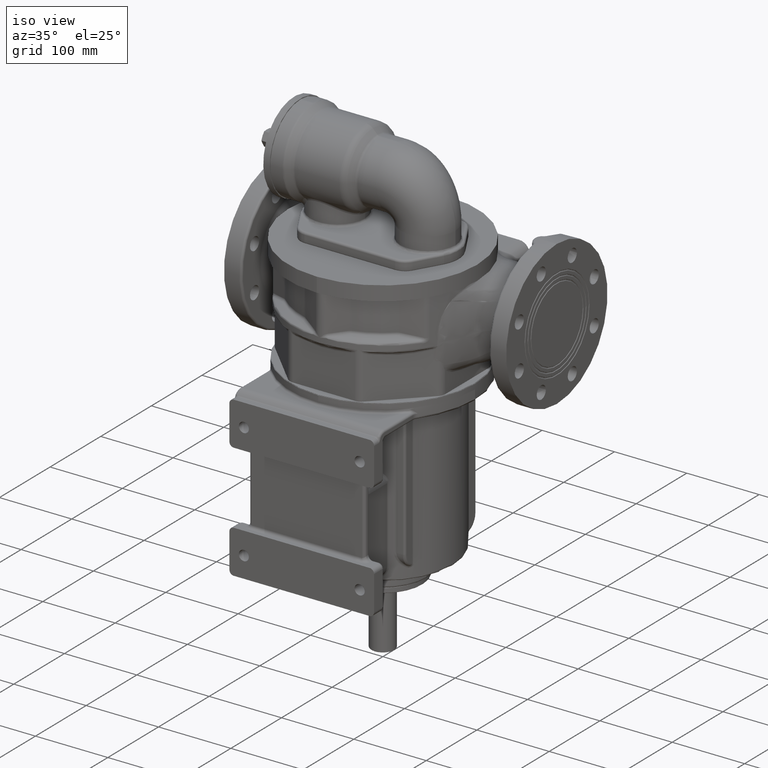
[diagram: clean part render]
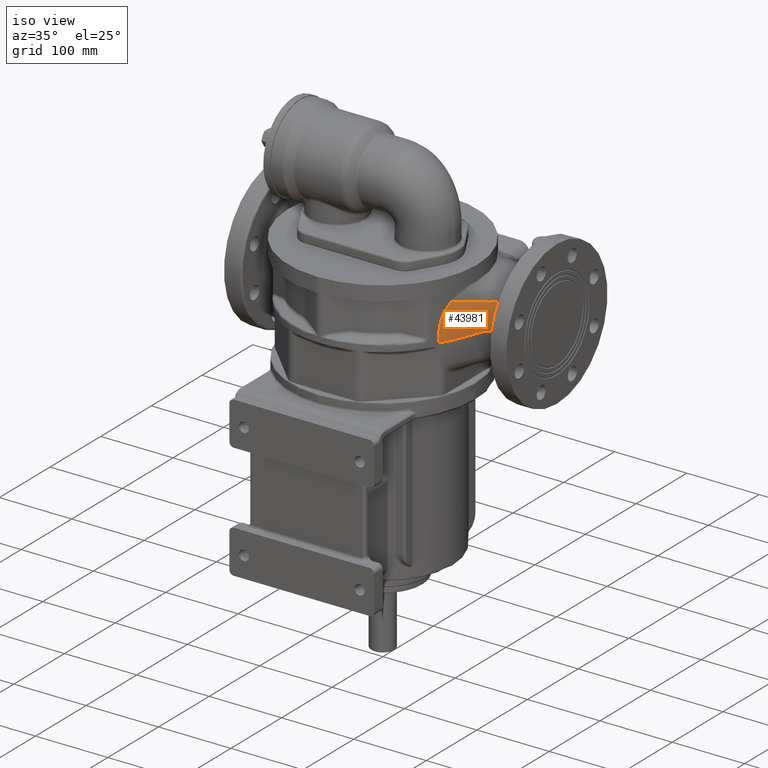
[diagram: same view with one face highlighted and labeled with its STEP entity id]
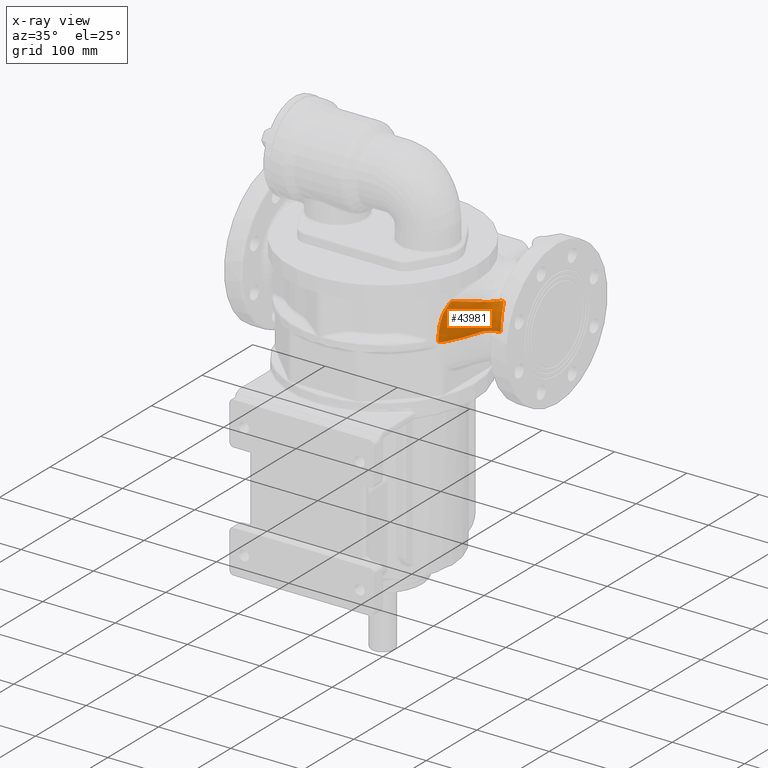
[diagram: x-ray of the same camera — body ghosted, the highlighted face saturated]
A machine part, iso view. The second image highlights one B-rep face of the part: STEP entity #43981.
The next image is the same camera in x-ray: the body ghosted, the highlighted face saturated — about 0% of this face is hidden behind the body in this view.
In plain terms, the highlighted face is a freeform B-spline surface patch.
Its self-contained STEP definition (entity closure, byte-faithful):
#9415=CARTESIAN_POINT('',(1.560032856311E2,1.E1,7.6E1));
#11903=CARTESIAN_POINT('',(1.524540976444E2,2.104498447469E1,1.090598909477E2));
#11955=CARTESIAN_POINT('',(1.197700848202E2,-3.606524153357E1,
1.225571575079E2));
#11956=CARTESIAN_POINT('',(1.196789065087E2,-3.636654927855E1,
1.222947716426E2));
#11957=CARTESIAN_POINT('',(1.194966298835E2,-3.696118415956E1,
1.217637039516E2));
#11958=CARTESIAN_POINT('',(1.192236926888E2,-3.782942820014E1,
1.209498854933E2));
#11959=CARTESIAN_POINT('',(1.189508006809E2,-3.867728485460E1,
1.201148938663E2));
#11960=CARTESIAN_POINT('',(1.186749211872E2,-3.951461839380E1,
1.192487620413E2));
#11961=CARTESIAN_POINT('',(1.183938808108E2,-4.034941483017E1,
1.183432072736E2));
#11962=CARTESIAN_POINT('',(1.180774455839E2,-4.126600871388E1,
1.172981249180E2));
#11963=CARTESIAN_POINT('',(1.178031089256E2,-4.204180147545E1,
1.163718538368E2));
#11964=CARTESIAN_POINT('',(1.175643845864E2,-4.270565327241E1,
1.155480183270E2));
#11965=CARTESIAN_POINT('',(1.173563827646E2,-4.327559005213E1,
1.148136046494E2));
#11966=CARTESIAN_POINT('',(1.171731446914E2,-4.377062049299E1,
1.141567112699E2));
#11967=CARTESIAN_POINT('',(1.170087647947E2,-4.420803085019E1,
1.135667066420E2));
#11968=CARTESIAN_POINT('',(1.168603292741E2,-4.459794200051E1,
1.130358974874E2));
#11969=CARTESIAN_POINT('',(1.167260397054E2,-4.494800675644E1,
1.125524731147E2));
#11970=CARTESIAN_POINT('',(1.166090864104E2,-4.525194096174E1,
1.121224426861E2));
#11971=CARTESIAN_POINT('',(1.165072803585E2,-4.551672798059E1,
1.117350097282E2));
#11972=CARTESIAN_POINT('',(1.164155179330E2,-4.575542086747E1,
1.113730946829E2));
#11973=CARTESIAN_POINT('',(1.163289080809E2,-4.598104956680E1,
1.110172684844E2));
#11974=CARTESIAN_POINT('',(1.162396737532E2,-4.621385322097E1,
1.106336505716E2));
#11975=CARTESIAN_POINT('',(1.161469783385E2,-4.645542078852E1,
1.102169447505E2));
#11976=CARTESIAN_POINT('',(1.160517556196E2,-4.670439692219E1,
1.097624225092E2));
#11977=CARTESIAN_POINT('',(1.159456772274E2,-4.698009145125E1,
1.092339458187E2));
#11978=CARTESIAN_POINT('',(1.158299460148E2,-4.728150396357E1,
1.086150297527E2));
#11979=CARTESIAN_POINT('',(1.157029855573E2,-4.760823619342E1,
1.079055314286E2));
#11980=CARTESIAN_POINT('',(1.155608386760E2,-4.797133828668E1,
1.070631078703E2));
#11981=CARTESIAN_POINT('',(1.154117768008E2,-4.834491472110E1,
1.061430880363E2));
#11982=CARTESIAN_POINT('',(1.152899902894E2,-4.864962664458E1,
1.053373080416E2));
#11983=CARTESIAN_POINT('',(1.151852995166E2,-4.891036010469E1,
1.046103222650E2));
#11984=CARTESIAN_POINT('',(1.150841148586E2,-4.916455295839E1,
1.038524094112E2));
#11985=CARTESIAN_POINT('',(1.149751060150E2,-4.943803138476E1,
1.029832605029E2));
#11986=CARTESIAN_POINT('',(1.148557653132E2,-4.973613929493E1,
1.019671212668E2));
#11987=CARTESIAN_POINT('',(1.147334161994E2,-5.004180395254E1,
1.008320161022E2));
#11988=CARTESIAN_POINT('',(1.146170719162E2,-5.033426646589E1,
9.963933848060E1));
#11989=CARTESIAN_POINT('',(1.144928336413E2,-5.064495185054E1,
9.824910642075E1));
#11990=CARTESIAN_POINT('',(1.143712505903E2,-5.094778900602E1,
9.674046249280E1));
#11991=CARTESIAN_POINT('',(1.142553942695E2,-5.123481128610E1,
9.514120312406E1));
#11992=CARTESIAN_POINT('',(1.141484498403E2,-5.149989779208E1,
9.347070117438E1));
#11993=CARTESIAN_POINT('',(1.140466308218E2,-5.175211140108E1,
9.165126003738E1));
#11994=CARTESIAN_POINT('',(1.139536298640E2,-5.198162464965E1,
8.972001216163E1));
#11995=CARTESIAN_POINT('',(1.138729326373E2,-5.218111944801E1,
8.771755239460E1));
#11996=CARTESIAN_POINT('',(1.138036310832E2,-5.235299071106E1,
8.559443871076E1));
#11997=CARTESIAN_POINT('',(1.137472643729E2,-5.249312193701E1,
8.335096919329E1));
#11998=CARTESIAN_POINT('',(1.137056901724E2,-5.259683118622E1,
8.101552643966E1));
#11999=CARTESIAN_POINT('',(1.136798600706E2,-5.266177982031E1,
7.856996793795E1));
#12000=CARTESIAN_POINT('',(1.136739138671E2,-5.267746741540E1,
7.686947536713E1));
#12001=CARTESIAN_POINT('',(1.136739543223E2,-5.267764010234E1,
7.600174155876E1));
#12003=CARTESIAN_POINT('',(1.197700848202E2,-3.606524153357E1,
1.225571575079E2));
#12004=CARTESIAN_POINT('',(1.200009967500E2,-3.560124353684E1,
1.224368503574E2));
#12005=CARTESIAN_POINT('',(1.207420106439E2,-3.409083892236E1,
1.220430484873E2));
#12006=CARTESIAN_POINT('',(1.219378931763E2,-3.154971793904E1,
1.213683309866E2));
#12007=CARTESIAN_POINT('',(1.233304282720E2,-2.845025179132E1,
1.205317870009E2));
#12008=CARTESIAN_POINT('',(1.251067333519E2,-2.435204726110E1,
1.194077898266E2));
#12009=CARTESIAN_POINT('',(1.267952909836E2,-2.029595017895E1,
1.182757184617E2));
#12010=CARTESIAN_POINT('',(1.284378665988E2,-1.628673865668E1,
1.171356434203E2));
#12011=CARTESIAN_POINT('',(1.296548658504E2,-1.330719224684E1,
1.162775838524E2));
#12012=CARTESIAN_POINT('',(1.308671235008E2,-1.035189354468E1,
1.154143209579E2));
#12013=CARTESIAN_POINT('',(1.318778129381E2,-7.915019681820E0,
1.146878362834E2));
#12014=CARTESIAN_POINT('',(1.326881027060E2,-5.989735572206E0,
1.141056851996E2));
#12015=CARTESIAN_POINT('',(1.333004281484E2,-4.551955887007E0,
1.136669612788E2));
#12016=CARTESIAN_POINT('',(1.339180639758E2,-3.119865750072E0,
1.132221155722E2));
#12017=CARTESIAN_POINT('',(1.345343160069E2,-1.714134550974E0,
1.127806312933E2));
#12018=CARTESIAN_POINT('',(1.351663161113E2,-2.960636575859E-1,
1.123260810213E2));
#12019=CARTESIAN_POINT('',(1.357792345818E2,1.050654173958E0,1.118899923309E2));
#12020=CARTESIAN_POINT('',(1.363939609715E2,2.361754050758E0,1.114869216678E2));
#12021=CARTESIAN_POINT('',(1.370255620478E2,3.666333775202E0,1.111083031052E2));
#12022=CARTESIAN_POINT('',(1.376684540714E2,4.949543284098E0,1.107583290161E2));
#12023=CARTESIAN_POINT('',(1.385441001859E2,6.635253572719E0,1.103325030325E2));
#12024=CARTESIAN_POINT('',(1.396746297413E2,8.691084999423E0,1.098791650400E2));
#12025=CARTESIAN_POINT('',(1.410836502857E2,1.104978248935E1,1.094745478948E2));
#12026=CARTESIAN_POINT('',(1.425372428106E2,1.327641560767E1,1.092189602599E2));
#12027=CARTESIAN_POINT('',(1.440174780406E2,1.533536014198E1,1.091126325842E2));
#12028=CARTESIAN_POINT('',(1.454990490443E2,1.718305544723E1,1.091425166246E2));
#12029=CARTESIAN_POINT('',(1.469476000403E2,1.875980098311E1,1.092715595312E2));
#12030=CARTESIAN_POINT('',(1.483258770445E2,1.999411961855E1,1.094332430362E2));
#12031=CARTESIAN_POINT('',(1.493966636843E2,2.068251981807E1,1.095159901101E2));
#12032=CARTESIAN_POINT('',(1.502123409459E2,2.101498746919E1,1.095052934547E2));
#12033=CARTESIAN_POINT('',(1.506134240462E2,2.111048879978E1,1.094690660599E2));
#12034=CARTESIAN_POINT('',(1.508143989624E2,2.114119146365E1,1.094424400230E2));
#12036=CARTESIAN_POINT('',(1.508143989624E2,2.114119146365E1,1.094424400230E2));
#12037=CARTESIAN_POINT('',(1.509484174945E2,2.116168434754E1,1.094247084757E2));
#12038=CARTESIAN_POINT('',(1.512157920063E2,2.118843871380E1,1.093831107219E2));
#12039=CARTESIAN_POINT('',(1.516110822546E2,2.118403595015E1,1.092992395987E2));
#12040=CARTESIAN_POINT('',(1.520091358256E2,2.113578569153E1,1.091907065727E2));
#12041=CARTESIAN_POINT('',(1.522977006455E2,2.107785539602E1,1.091035928539E2));
#12042=CARTESIAN_POINT('',(1.524540976444E2,2.104498447469E1,1.090598909477E2));
#12044=CARTESIAN_POINT('',(1.560032856311E2,1.E1,7.6E1));
#12045=CARTESIAN_POINT('',(1.560032856311E2,1.E1,7.756815490012E1));
#12046=CARTESIAN_POINT('',(1.559637624300E2,1.013428268951E1,8.070467519306E1));
#12047=CARTESIAN_POINT('',(1.557879492614E2,1.073623400764E1,8.537050963848E1));
#12048=CARTESIAN_POINT('',(1.554930347192E2,1.173209709914E1,8.995894668913E1));
#12049=CARTESIAN_POINT('',(1.550748749089E2,1.311069200209E1,9.443288875345E1));
#12050=CARTESIAN_POINT('',(1.545294892100E2,1.485645184262E1,9.875590949359E1));
#12051=CARTESIAN_POINT('',(1.538532209616E2,1.694923404149E1,1.028931430516E2));
#12052=CARTESIAN_POINT('',(1.531478548196E2,1.905479480381E1,1.063098809692E2));
#12053=CARTESIAN_POINT('',(1.526515791469E2,2.048349619960E1,1.083133516436E2));
#12054=CARTESIAN_POINT('',(1.524540976444E2,2.104498447469E1,1.090598909477E2));
#12056=CARTESIAN_POINT('',(1.136737442224E2,-5.267764362179E1,
7.600176083388E1));
#12057=CARTESIAN_POINT('',(1.138979400954E2,-5.246868663783E1,
7.600204758591E1));
#12058=CARTESIAN_POINT('',(1.144255812845E2,-5.196161758585E1,
7.600257273234E1));
#12059=CARTESIAN_POINT('',(1.152293038883E2,-5.113092315205E1,
7.600215279432E1));
#12060=CARTESIAN_POINT('',(1.160771850653E2,-5.017714099813E1,
7.599994889704E1));
#12061=CARTESIAN_POINT('',(1.168882044476E2,-4.918255525644E1,
7.599805161913E1));
#12062=CARTESIAN_POINT('',(1.175296294401E2,-4.832192061849E1,
7.599975087314E1));
#12063=CARTESIAN_POINT('',(1.180138712541E2,-4.762684010384E1,
7.600083810681E1));
#12064=CARTESIAN_POINT('',(1.183632099919E2,-4.710286852858E1,
7.600006286873E1));
#12065=CARTESIAN_POINT('',(1.187081064013E2,-4.656171926458E1,
7.599891042112E1));
#12066=CARTESIAN_POINT('',(1.190499914415E2,-4.599737723068E1,
7.599980419913E1));
#12067=CARTESIAN_POINT('',(1.193683087171E2,-4.544334648660E1,
7.600187278198E1));
#12068=CARTESIAN_POINT('',(1.196454501333E2,-4.493973693950E1,
7.600281094106E1));
#12069=CARTESIAN_POINT('',(1.198814780095E2,-4.449960593663E1,
7.600196329212E1));
#12070=CARTESIAN_POINT('',(1.200869934355E2,-4.411285996762E1,
7.599981284982E1));
#12071=CARTESIAN_POINT('',(1.202853650837E2,-4.373965737394E1,
7.599878530781E1));
#12072=CARTESIAN_POINT('',(1.204949741496E2,-4.334459894402E1,
7.600006020127E1));
#12073=CARTESIAN_POINT('',(1.207098044262E2,-4.293669154614E1,
7.600097388652E1));
#12074=CARTESIAN_POINT('',(1.209194194135E2,-4.253560337918E1,
7.600005613389E1));
#12075=CARTESIAN_POINT('',(1.211243698388E2,-4.214137815948E1,
7.599880157388E1));
#12076=CARTESIAN_POINT('',(1.213957228852E2,-4.161725436773E1,
7.599826594656E1));
#12077=CARTESIAN_POINT('',(1.217360585805E2,-4.095572085998E1,
7.600015131839E1));
#12078=CARTESIAN_POINT('',(1.221453441213E2,-4.015090808013E1,
7.600150585485E1));
#12079=CARTESIAN_POINT('',(1.226831709978E2,-3.908029187948E1,
7.599949000703E1));
#12080=CARTESIAN_POINT('',(1.233422393566E2,-3.774681530787E1,
7.599706065885E1));
#12081=CARTESIAN_POINT('',(1.241223398369E2,-3.613536886037E1,
7.600028691891E1));
#12082=CARTESIAN_POINT('',(1.248901961780E2,-3.451248711899E1,
7.600179166867E1));
#12083=CARTESIAN_POINT('',(1.258933861888E2,-3.234177323918E1,
7.599934322556E1));
#12084=CARTESIAN_POINT('',(1.271095736680E2,-2.961685642866E1,
7.599695262432E1));
#12085=CARTESIAN_POINT('',(1.285131837026E2,-2.632122149842E1,
7.600055217765E1));
#12086=CARTESIAN_POINT('',(1.298604590746E2,-2.299783583867E1,
7.600083866295E1));
#12087=CARTESIAN_POINT('',(1.309340562673E2,-2.020790265590E1,
7.599988095910E1));
#12088=CARTESIAN_POINT('',(1.317621816414E2,-1.796877535524E1,
7.600004654060E1));
#12089=CARTESIAN_POINT('',(1.323684218190E2,-1.628591698809E1,
7.600003210544E1));
#12090=CARTESIAN_POINT('',(1.329616805813E2,-1.459383619952E1,
7.599982503928E1));
#12091=CARTESIAN_POINT('',(1.335413855873E2,-1.289009374804E1,
7.599997870686E1));
#12092=CARTESIAN_POINT('',(1.340086558805E2,-1.147443563023E1,
7.600021322821E1));
#12093=CARTESIAN_POINT('',(1.343741202721E2,-1.034526473715E1,
7.600013674528E1));
#12094=CARTESIAN_POINT('',(1.346455631633E2,-9.495467181091E0,
7.599998939159E1));
#12095=CARTESIAN_POINT('',(1.349161737869E2,-8.635338816463E0,
7.599990568940E1));
#12096=CARTESIAN_POINT('',(1.351848277108E2,-7.764477688765E0,
7.600000657485E1));
#12097=CARTESIAN_POINT('',(1.353996541943E2,-7.055258949025E0,
7.600005777005E1));
#12098=CARTESIAN_POINT('',(1.355673601710E2,-6.498069918581E0,
7.600002918032E1));
#12099=CARTESIAN_POINT('',(1.356936822025E2,-6.076649357337E0,
7.599999676735E1));
#12100=CARTESIAN_POINT('',(1.358242878755E2,-5.637590115801E0,
7.599998375069E1));
#12101=CARTESIAN_POINT('',(1.359579259364E2,-5.181092714781E0,
7.600000060989E1));
#12102=CARTESIAN_POINT('',(1.360811273423E2,-4.753966592405E0,
7.600001380957E1));
#12103=CARTESIAN_POINT('',(1.361842553621E2,-4.399250186486E0,
7.600000334184E1));
#12104=CARTESIAN_POINT('',(1.362733980193E2,-4.102785562664E0,
7.599997282229E1));
#12105=CARTESIAN_POINT('',(1.363864381981E2,-3.743748855885E0,
7.599994433520E1));
#12106=CARTESIAN_POINT('',(1.365341690007E2,-3.308382757118E0,
7.600000761407E1));
#12107=CARTESIAN_POINT('',(1.367348679922E2,-2.768099607744E0,
7.600003787604E1));
#12108=CARTESIAN_POINT('',(1.369480272099E2,-2.240370371020E0,
7.599999993242E1));
#12109=CARTESIAN_POINT('',(1.371743618069E2,-1.722910358685E0,
7.599996233295E1));
#12110=CARTESIAN_POINT('',(1.374970103111E2,-1.039277430949E0,
7.600000357382E1));
#12111=CARTESIAN_POINT('',(1.379388906911E2,-1.978359275385E-1,
7.600015692056E1));
#12112=CARTESIAN_POINT('',(1.385238589265E2,7.775934460805E-1,
7.599999986815E1));
#12113=CARTESIAN_POINT('',(1.391620456795E2,1.716336109913E0,7.599984081105E1));
#12114=CARTESIAN_POINT('',(1.400838938707E2,2.919062411348E0,7.600005573901E1));
#12115=CARTESIAN_POINT('',(1.413630630610E2,4.322303444271E0,7.600032805348E1));
#12116=CARTESIAN_POINT('',(1.430760325413E2,5.818760404452E0,7.599987822748E1));
#12117=CARTESIAN_POINT('',(1.449506025587E2,7.113136495862E0,7.600008977503E1));
#12118=CARTESIAN_POINT('',(1.466229282046E2,8.006852332209E0,7.599990949350E1));
#12119=CARTESIAN_POINT('',(1.480138389953E2,8.603699547983E0,7.600002065491E1));
#12120=CARTESIAN_POINT('',(1.490832881147E2,8.992325391803E0,7.600007521256E1));
#12121=CARTESIAN_POINT('',(1.501748730240E2,9.320354673579E0,7.600005482353E1));
#12122=CARTESIAN_POINT('',(1.510975805836E2,9.541567249428E0,7.599999951441E1));
#12123=CARTESIAN_POINT('',(1.518383494544E2,9.686004168463E0,7.600000740119E1));
#12124=CARTESIAN_POINT('',(1.523953682756E2,9.778118618753E0,7.600001571838E1));
#12125=CARTESIAN_POINT('',(1.529599986497E2,9.855045812685E0,7.599993546864E1));
#12126=CARTESIAN_POINT('',(1.535335580256E2,9.916902141632E0,7.599993574237E1));
#12127=CARTESIAN_POINT('',(1.540938016392E2,9.961319799509E0,7.600034823665E1));
#12128=CARTESIAN_POINT('',(1.546369727032E2,9.988066077791E0,7.600075673024E1));
#12129=CARTESIAN_POINT('',(1.552192149852E2,1.000016759086E1,7.600048038855E1));
#12130=CARTESIAN_POINT('',(1.557069324643E2,1.E1,7.6E1));
#12131=CARTESIAN_POINT('',(1.560032856311E2,1.E1,7.6E1));
#18730=VERTEX_POINT('',#11955);
#18731=VERTEX_POINT('',#12001);
#18801=VERTEX_POINT('',#9415);
#18804=VERTEX_POINT('',#11903);
#18805=VERTEX_POINT('',#12036);
#43135=CARTESIAN_POINT('',(1.130507963440E2,-5.324174981253E1,
7.550451506245E1));
#43136=CARTESIAN_POINT('',(1.135068120403E2,-5.284000428877E1,
7.550545485195E1));
#43137=CARTESIAN_POINT('',(1.142614134290E2,-5.213331261007E1,
7.550714759484E1));
#43138=CARTESIAN_POINT('',(1.152727598134E2,-5.108356508022E1,
7.550745889285E1));
#43139=CARTESIAN_POINT('',(1.161194824618E2,-5.012671599675E1,
7.550602024043E1));
#43140=CARTESIAN_POINT('',(1.169279200485E2,-4.913058838415E1,
7.550484761664E1));
#43141=CARTESIAN_POINT('',(1.175664796558E2,-4.827003661650E1,
7.550724541182E1));
#43142=CARTESIAN_POINT('',(1.180496934339E2,-4.757341544493E1,
7.550918087821E1));
#43143=CARTESIAN_POINT('',(1.183989147580E2,-4.704714615191E1,
7.550916788814E1));
#43144=CARTESIAN_POINT('',(1.187430436600E2,-4.650437817333E1,
7.550870200583E1));
#43145=CARTESIAN_POINT('',(1.190825420715E2,-4.594103187243E1,
7.551007905205E1));
#43146=CARTESIAN_POINT('',(1.193974694244E2,-4.539041819405E1,
7.551252259668E1));
#43147=CARTESIAN_POINT('',(1.196711787819E2,-4.489139564790E1,
7.551386561639E1));
#43148=CARTESIAN_POINT('',(1.199043193230E2,-4.445579288644E1,
7.551355486067E1));
#43149=CARTESIAN_POINT('',(1.201079085967E2,-4.407235150310E1,
7.551215741553E1));
#43150=CARTESIAN_POINT('',(1.203057111751E2,-4.370016046764E1,
7.551218834716E1));
#43151=CARTESIAN_POINT('',(1.205160474254E2,-4.330368045130E1,
7.551480687019E1));
#43152=CARTESIAN_POINT('',(1.207317470365E2,-4.289387608912E1,
7.551707916823E1));
#43153=CARTESIAN_POINT('',(1.209413891480E2,-4.249237082127E1,
7.551731873299E1));
#43154=CARTESIAN_POINT('',(1.211458055386E2,-4.209886289675E1,
7.551710353739E1));
#43155=CARTESIAN_POINT('',(1.214164494975E2,-4.157584322844E1,
7.551797854933E1));
#43156=CARTESIAN_POINT('',(1.217567206791E2,-4.091432038715E1,
7.552184950438E1));
#43157=CARTESIAN_POINT('',(1.221666904777E2,-4.010779894649E1,
7.552573589523E1));
#43158=CARTESIAN_POINT('',(1.227044420308E2,-3.903646389857E1,
7.552682100343E1));
#43159=CARTESIAN_POINT('',(1.233621872144E2,-3.770470280569E1,
7.552802217540E1));
#43160=CARTESIAN_POINT('',(1.241416091013E2,-3.609414523674E1,
7.553597365985E1));
#43161=CARTESIAN_POINT('',(1.249091354896E2,-3.447117876369E1,
7.554230265105E1));
#43162=CARTESIAN_POINT('',(1.259110871125E2,-3.230161543199E1,
7.554609497719E1));
#43163=CARTESIAN_POINT('',(1.271248678526E2,-2.958036501134E1,
7.555149827231E1));
#43164=CARTESIAN_POINT('',(1.285261440474E2,-2.628903756948E1,
7.556505591324E1));
#43165=CARTESIAN_POINT('',(1.298710399166E2,-2.297006916906E1,
7.557561137497E1));
#43166=CARTESIAN_POINT('',(1.309423538341E2,-2.018491428909E1,
7.558352885028E1));
#43167=CARTESIAN_POINT('',(1.317688050685E2,-1.794968914606E1,
7.559112141990E1));
#43168=CARTESIAN_POINT('',(1.323739076553E2,-1.626958722119E1,
7.559683171729E1));
#43169=CARTESIAN_POINT('',(1.329660732759E2,-1.458025131749E1,
7.560250673917E1));
#43170=CARTESIAN_POINT('',(1.335446923118E2,-1.287943612253E1,
7.560873974962E1));
#43171=CARTESIAN_POINT('',(1.340111593622E2,-1.146611752682E1,
7.561419518662E1));
#43172=CARTESIAN_POINT('',(1.343760732254E2,-1.033859194919E1,
7.561836728655E1));
#43173=CARTESIAN_POINT('',(1.346471342066E2,-9.489950666613E0,
7.562145086516E1));
#43174=CARTESIAN_POINT('',(1.349173666075E2,-8.630996166076E0,
7.562466664850E1));
#43175=CARTESIAN_POINT('',(1.351856319719E2,-7.761406905988E0,
7.562815260239E1));
#43176=CARTESIAN_POINT('',(1.354001682511E2,-7.053193334736E0,
7.563103024465E1));
#43177=CARTESIAN_POINT('',(1.355676822052E2,-6.496682601014E0,
7.563325163829E1));
#43178=CARTESIAN_POINT('',(1.356938745398E2,-6.075724696559E0,
7.563492288236E1));
#43179=CARTESIAN_POINT('',(1.358243491407E2,-5.637139902769E0,
7.563667172216E1));
#43180=CARTESIAN_POINT('',(1.359578506016E2,-5.181158121338E0,
7.563851829686E1));
#43181=CARTESIAN_POINT('',(1.360809430659E2,-4.754462271400E0,
7.564029938744E1));
#43182=CARTESIAN_POINT('',(1.361839954561E2,-4.400025342105E0,
7.564184821944E1));
#43183=CARTESIAN_POINT('',(1.362730463110E2,-4.103844670417E0,
7.564317564226E1));
#43184=CARTESIAN_POINT('',(1.363858935948E2,-3.745351985853E0,
7.564478583082E1));
#43185=CARTESIAN_POINT('',(1.365332489838E2,-3.310946117601E0,
7.564672320025E1));
#43186=CARTESIAN_POINT('',(1.367334817290E2,-2.771654637616E0,
7.564885393737E1));
#43187=CARTESIAN_POINT('',(1.369461831677E2,-2.244725153962E0,
7.565067999571E1));
#43188=CARTESIAN_POINT('',(1.371719591252E2,-1.728149731429E0,
7.565227870267E1));
#43189=CARTESIAN_POINT('',(1.374937464702E2,-1.045750151335E0,
7.565423370154E1));
#43190=CARTESIAN_POINT('',(1.379345040768E2,-2.055924256627E-1,
7.565628569490E1));
#43191=CARTESIAN_POINT('',(1.385181038046E2,7.687245641014E-1,
7.565760671513E1));
#43192=CARTESIAN_POINT('',(1.391547911254E2,1.706518743106E0,7.565818756813E1));
#43193=CARTESIAN_POINT('',(1.400746419297E2,2.908386577390E0,7.565850176699E1));
#43194=CARTESIAN_POINT('',(1.413517214918E2,4.311635953197E0,7.565735160827E1));
#43195=CARTESIAN_POINT('',(1.430630591649E2,5.809365856045E0,7.565330859012E1));
#43196=CARTESIAN_POINT('',(1.449372482786E2,7.105908442144E0,7.564883069609E1));
#43197=CARTESIAN_POINT('',(1.466105238040E2,8.001860325894E0,7.564445871080E1));
#43198=CARTESIAN_POINT('',(1.480027645373E2,8.600403047905E0,7.564146738625E1));
#43199=CARTESIAN_POINT('',(1.490735062339E2,8.990224496724E0,7.563940978127E1));
#43200=CARTESIAN_POINT('',(1.501666245515E2,9.319318430305E0,7.563757178968E1));
#43201=CARTESIAN_POINT('',(1.510907450861E2,9.541270924049E0,7.563630487573E1));
#43202=CARTESIAN_POINT('',(1.518326701967E2,9.686192309047E0,7.563555566385E1));
#43203=CARTESIAN_POINT('',(1.523905478799E2,9.778613112212E0,7.563510751191E1));
#43204=CARTESIAN_POINT('',(1.529559881892E2,9.855786661689E0,7.563468095396E1));
#43205=CARTESIAN_POINT('',(1.535302974779E2,9.917829098046E0,7.563444929240E1));
#43206=CARTESIAN_POINT('',(1.540913173808E2,9.962378587545E0,7.563477945930E1));
#43207=CARTESIAN_POINT('',(1.546353316851E2,9.989212055794E0,7.563525229520E1));
#43208=CARTESIAN_POINT('',(1.555165682631E2,1.000758097777E1,7.563497520772E1));
#43209=CARTESIAN_POINT('',(1.565138600065E2,9.996130608102E0,7.563340190479E1));
#43210=CARTESIAN_POINT('',(1.578372578899E2,1.000947602042E1,7.563594658620E1));
#43211=CARTESIAN_POINT('',(1.128432321222E2,-5.342881042016E1,
7.779833978534E1));
#43212=CARTESIAN_POINT('',(1.133006289181E2,-5.303330212119E1,
7.779812384515E1));
#43213=CARTESIAN_POINT('',(1.140574823935E2,-5.233766812994E1,
7.779751623324E1));
#43214=CARTESIAN_POINT('',(1.150719691750E2,-5.130563893595E1,
7.779392589681E1));
#43215=CARTESIAN_POINT('',(1.159242256196E2,-5.036307910501E1,
7.778893738311E1));
#43216=CARTESIAN_POINT('',(1.167448587718E2,-4.937404827244E1,
7.778442142620E1));
#43217=CARTESIAN_POINT('',(1.173969121943E2,-4.851296693985E1,
7.778361011492E1));
#43218=CARTESIAN_POINT('',(1.178849862945E2,-4.782347729159E1,
7.778161817162E1));
#43219=CARTESIAN_POINT('',(1.182347874893E2,-4.730792796494E1,
7.777806191502E1));
#43220=CARTESIAN_POINT('',(1.185825433653E2,-4.677267743305E1,
7.777441226350E1));
#43221=CARTESIAN_POINT('',(1.189332496736E2,-4.620453605023E1,
7.777357942599E1));
#43222=CARTESIAN_POINT('',(1.192640673225E2,-4.563775678128E1,
7.777434188025E1));
#43223=CARTESIAN_POINT('',(1.195538444243E2,-4.511711968571E1,
7.777387507975E1));
#43224=CARTESIAN_POINT('',(1.198004866965E2,-4.466023471439E1,
7.777113782573E1));
#43225=CARTESIAN_POINT('',(1.200130637879E2,-4.426129763650E1,
7.776629518140E1));
#43226=CARTESIAN_POINT('',(1.202134891558E2,-4.388437728350E1,
7.776143866156E1));
#43227=CARTESIAN_POINT('',(1.204203745283E2,-4.349456533106E1,
7.775782173469E1));
#43228=CARTESIAN_POINT('',(1.206319609881E2,-4.309365615783E1,
7.775378350864E1));
#43229=CARTESIAN_POINT('',(1.208414384735E2,-4.269411114765E1,
7.774866179518E1));
#43230=CARTESIAN_POINT('',(1.210483207276E2,-4.229724667373E1,
7.774364494482E1));
#43231=CARTESIAN_POINT('',(1.213222396803E2,-4.176906202359E1,
7.773800447549E1));
#43232=CARTESIAN_POINT('',(1.216627526340E2,-4.110750702356E1,
7.773268490101E1));
#43233=CARTESIAN_POINT('',(1.220694432706E2,-4.030902514579E1,
7.772482952291E1));
#43234=CARTESIAN_POINT('',(1.226074577959E2,-3.924110603536E1,
7.771155002321E1));
#43235=CARTESIAN_POINT('',(1.232713009560E2,-3.790136305993E1,
7.769596561210E1));
#43236=CARTESIAN_POINT('',(1.240537827899E2,-3.628673044717E1,
7.768205030887E1));
#43237=CARTESIAN_POINT('',(1.248227375664E2,-3.466427413458E1,
7.766603853258E1));
#43238=CARTESIAN_POINT('',(1.258303456109E2,-3.248948037975E1,
7.764094506318E1));
#43239=CARTESIAN_POINT('',(1.270552345047E2,-2.975125612686E1,
7.761030093758E1));
#43240=CARTESIAN_POINT('',(1.284672400316E2,-2.644001339186E1,
7.757779200361E1));
#43241=CARTESIAN_POINT('',(1.298230705135E2,-2.310061565603E1,
7.754084088162E1));
#43242=CARTESIAN_POINT('',(1.309048925286E2,-2.029326327029E1,
7.750771225975E1));
#43243=CARTESIAN_POINT('',(1.317390198811E2,-1.803988858204E1,
7.748095531624E1));
#43244=CARTESIAN_POINT('',(1.323493173428E2,-1.634696292655E1,
7.746018671060E1));
#43245=CARTESIAN_POINT('',(1.329464615426E2,-1.464483913359E1,
7.743865557437E1));
#43246=CARTESIAN_POINT('',(1.335300165304E2,-1.293035618530E1,
7.741677211826E1));
#43247=CARTESIAN_POINT('',(1.340001082304E2,-1.150610700570E1,
7.739807963408E1));
#43248=CARTESIAN_POINT('',(1.343674835627E2,-1.037089355281E1,
7.738259995671E1));
#43249=CARTESIAN_POINT('',(1.346402429458E2,-9.516844143588E0,
7.737073911331E1));
#43250=CARTESIAN_POINT('',(1.349121548747E2,-8.652385574291E0,
7.735869457777E1));
#43251=CARTESIAN_POINT('',(1.351821456659E2,-7.776818241109E0,
7.734652553605E1));
#43252=CARTESIAN_POINT('',(1.353979568650E2,-7.063888549504E0,
7.733633085906E1));
#43253=CARTESIAN_POINT('',(1.355663002318E2,-6.504200963087E0,
7.732814570095E1));
#43254=CARTESIAN_POINT('',(1.356930473706E2,-6.081072388647E0,
7.732193749966E1));
#43255=CARTESIAN_POINT('',(1.358240843426E2,-5.640246118068E0,
7.731553862633E1));
#43256=CARTESIAN_POINT('',(1.359581741128E2,-5.181814549857E0,
7.730892433194E1));
#43257=CARTESIAN_POINT('',(1.360817207528E2,-4.753092002727E0,
7.730252865702E1));
#43258=CARTESIAN_POINT('',(1.361850649431E2,-4.397393085202E0,
7.729686216847E1));
#43259=CARTESIAN_POINT('',(1.362744791984E2,-4.099974739555E0,
7.729190429817E1));
#43260=CARTESIAN_POINT('',(1.363881392548E2,-3.739081504726E0,
7.728593025201E1));
#43261=CARTESIAN_POINT('',(1.365371419831E2,-3.300363000969E0,
7.727919654378E1));
#43262=CARTESIAN_POINT('',(1.367394336178E2,-2.756625636598E0,
7.727161036045E1));
#43263=CARTESIAN_POINT('',(1.369541564816E2,-2.226153022364E0,
7.726481462627E1));
#43264=CARTESIAN_POINT('',(1.371824298509E2,-1.705634242023E0,
7.725884773985E1));
#43265=CARTESIAN_POINT('',(1.375081002889E2,-1.017711958051E0,
7.725195797690E1));
#43266=CARTESIAN_POINT('',(1.379539447150E2,-1.718389906606E-1,
7.724524061838E1));
#43267=CARTESIAN_POINT('',(1.385437724239E2,8.073546060225E-1,
7.723974667742E1));
#43268=CARTESIAN_POINT('',(1.391873317609E2,1.749287101256E0,7.723693400226E1));
#43269=CARTESIAN_POINT('',(1.401163867580E2,2.954811630867E0,7.723683384090E1));
#43270=CARTESIAN_POINT('',(1.414031686898E2,4.357636092750E0,7.724232669459E1));
#43271=CARTESIAN_POINT('',(1.431222326646E2,5.849027088740E0,7.725498201425E1));
#43272=CARTESIAN_POINT('',(1.449984773861E2,7.135106010310E0,7.727226352409E1));
#43273=CARTESIAN_POINT('',(1.466676604953E2,8.020351270876E0,7.728732353451E1));
#43274=CARTESIAN_POINT('',(1.480540133092E2,8.610782970688E0,7.729870865417E1));
#43275=CARTESIAN_POINT('',(1.491189806724E2,8.994887473506E0,7.730643657805E1));
#43276=CARTESIAN_POINT('',(1.502052142103E2,9.318889956763E0,7.731301900979E1));
#43277=CARTESIAN_POINT('',(1.511229731198E2,9.537301574093E0,7.731736625262E1));
#43278=CARTESIAN_POINT('',(1.518596885838E2,9.679902043984E0,7.732012697601E1));
#43279=CARTESIAN_POINT('',(1.524136982542E2,9.770853630111E0,7.732179630104E1));
#43280=CARTESIAN_POINT('',(1.529755035195E2,9.846843835039E0,7.732297751178E1));
#43281=CARTESIAN_POINT('',(1.535464631619E2,9.907990402641E0,7.732382457404E1));
#43282=CARTESIAN_POINT('',(1.541040001006E2,9.951904341068E0,7.732454293066E1));
#43283=CARTESIAN_POINT('',(1.546442053996E2,9.978316982210E0,7.732472773637E1));
#43284=CARTESIAN_POINT('',(1.555200150268E2,9.996304269025E0,7.732381592021E1));
#43285=CARTESIAN_POINT('',(1.565155914061E2,9.984785391907E0,7.732374339672E1));
#43286=CARTESIAN_POINT('',(1.578424827967E2,9.998562626735E0,7.733182514584E1));
#43287=CARTESIAN_POINT('',(1.124506457936E2,-5.371362463185E1,
8.222621020005E1));
#43288=CARTESIAN_POINT('',(1.129086727554E2,-5.332853692687E1,
8.222389605776E1));
#43289=CARTESIAN_POINT('',(1.136665325893E2,-5.265144444928E1,
8.221911323891E1));
#43290=CARTESIAN_POINT('',(1.146826043688E2,-5.164908964684E1,
8.220851047483E1));
#43291=CARTESIAN_POINT('',(1.155407520398E2,-5.073106071341E1,
8.219702575565E1));
#43292=CARTESIAN_POINT('',(1.163779069985E2,-4.975653433414E1,
8.218590175965E1));
#43293=CARTESIAN_POINT('',(1.170493264398E2,-4.889836594783E1,
8.217837334907E1));
#43294=CARTESIAN_POINT('',(1.175438747061E2,-4.822235831252E1,
8.216898811661E1));
#43295=CARTESIAN_POINT('',(1.178937978483E2,-4.772482083278E1,
8.215913756966E1));
#43296=CARTESIAN_POINT('',(1.182464252017E2,-4.720312250916E1,
8.214962658060E1));
#43297=CARTESIAN_POINT('',(1.186140406029E2,-4.663090082777E1,
8.214388814205E1));
#43298=CARTESIAN_POINT('',(1.189696034577E2,-4.604289198186E1,
8.214000393005E1));
#43299=CARTESIAN_POINT('',(1.192849293641E2,-4.549160917438E1,
8.213438572368E1));
#43300=CARTESIAN_POINT('',(1.195534534885E2,-4.500308229765E1,
8.212547906509E1));
#43301=CARTESIAN_POINT('',(1.197811030100E2,-4.458016698615E1,
8.211303536201E1));
#43302=CARTESIAN_POINT('',(1.199867910293E2,-4.419555857167E1,
8.209861005119E1));
#43303=CARTESIAN_POINT('',(1.201894198530E2,-4.381601492112E1,
8.208362969805E1));
#43304=CARTESIAN_POINT('',(1.203956115837E2,-4.342887134932E1,
8.206824062431E1));
#43305=CARTESIAN_POINT('',(1.206058225229E2,-4.303224467258E1,
8.205309339208E1));
#43306=CARTESIAN_POINT('',(1.208175311633E2,-4.263000458408E1,
8.203874237245E1));
#43307=CARTESIAN_POINT('',(1.210978374958E2,-4.209350207808E1,
8.202039850963E1));
#43308=CARTESIAN_POINT('',(1.214403281558E2,-4.143142915818E1,
8.199768529433E1));
#43309=CARTESIAN_POINT('',(1.218438090969E2,-4.064466747695E1,
8.196822140520E1));
#43310=CARTESIAN_POINT('',(1.223846129547E2,-3.958084521404E1,
8.192806666886E1));
#43311=CARTESIAN_POINT('',(1.230607052702E2,-3.822711459577E1,
8.188021380948E1));
#43312=CARTESIAN_POINT('',(1.238511452016E2,-3.660372747482E1,
8.182479708793E1));
#43313=CARTESIAN_POINT('',(1.246254481327E2,-3.497908695237E1,
8.176681061713E1));
#43314=CARTESIAN_POINT('',(1.256457841580E2,-3.279186064209E1,
8.168704884673E1));
#43315=CARTESIAN_POINT('',(1.268925438254E2,-3.002162089306E1,
8.158745258131E1));
#43316=CARTESIAN_POINT('',(1.283268101895E2,-2.667210615555E1,
8.146708238319E1));
#43317=CARTESIAN_POINT('',(1.297054520938E2,-2.329362421012E1,
8.133957140191E1));
#43318=CARTESIAN_POINT('',(1.308087718874E2,-2.044643816487E1,
8.122785795904E1));
#43319=CARTESIAN_POINT('',(1.316593727565E2,-1.816108524362E1,
8.113536137533E1));
#43320=CARTESIAN_POINT('',(1.322813888394E2,-1.644564795104E1,
8.106397533032E1));
#43321=CARTESIAN_POINT('',(1.328901247059E2,-1.472155311636E1,
8.099041911517E1));
#43322=CARTESIAN_POINT('',(1.334854427185E2,-1.298439102093E1,
8.091471208744E1));
#43323=CARTESIAN_POINT('',(1.339648876695E2,-1.154219088341E1,
8.084983479781E1));
#43324=CARTESIAN_POINT('',(1.343392406534E2,-1.039437094138E1,
8.079679872897E1));
#43325=CARTESIAN_POINT('',(1.346170681957E2,-9.531595084434E0,
8.075637106207E1));
#43326=CARTESIAN_POINT('',(1.348940606982E2,-8.658617633027E0,
8.071512288545E1));
#43327=CARTESIAN_POINT('',(1.351692706366E2,-7.774180686988E0,
8.067296307594E1));
#43328=CARTESIAN_POINT('',(1.353893219804E2,-7.054030834536E0,
8.063774662517E1));
#43329=CARTESIAN_POINT('',(1.355608237418E2,-6.489329907703E0,
8.060965232420E1));
#43330=CARTESIAN_POINT('',(1.356898385039E2,-6.062875778696E0,
8.058836253868E1));
#43331=CARTESIAN_POINT('',(1.358231252077E2,-5.619025037331E0,
8.056634361907E1));
#43332=CARTESIAN_POINT('',(1.359595040167E2,-5.157651114512E0,
8.054349074340E1));
#43333=CARTESIAN_POINT('',(1.360852486579E2,-4.726037791856E0,
8.052145077042E1));
#43334=CARTESIAN_POINT('',(1.361907016728E2,-4.367109655728E0,
8.050207122758E1));
#43335=CARTESIAN_POINT('',(1.362824469972E2,-4.065301318735E0,
8.048521588634E1));
#43336=CARTESIAN_POINT('',(1.363997842287E2,-3.696721064282E0,
8.046487496131E1));
#43337=CARTESIAN_POINT('',(1.365543182559E2,-3.246308015116E0,
8.044164283836E1));
#43338=CARTESIAN_POINT('',(1.367631586938E2,-2.690294480222E0,
8.041552539439E1));
#43339=CARTESIAN_POINT('',(1.369843134913E2,-2.148868543510E0,
8.039225657051E1));
#43340=CARTESIAN_POINT('',(1.372196757587E2,-1.616840898447E0,
8.037175481543E1));
#43341=CARTESIAN_POINT('',(1.375554481476E2,-9.134855339385E-1,
8.034777565765E1));
#43342=CARTESIAN_POINT('',(1.380138658010E2,-5.072219273655E-2,
8.032396759703E1));
#43343=CARTESIAN_POINT('',(1.386183269826E2,9.449851130084E-1,
8.030487800965E1));
#43344=CARTESIAN_POINT('',(1.392767216559E2,1.901487258338E0,8.029481741284E1));
#43345=CARTESIAN_POINT('',(1.402242933577E2,3.122402255907E0,8.029273915112E1));
#43346=CARTESIAN_POINT('',(1.415286220573E2,4.534740518361E0,8.030924549680E1));
#43347=CARTESIAN_POINT('',(1.432576561561E2,6.026067128260E0,8.035173999347E1));
#43348=CARTESIAN_POINT('',(1.451299436249E2,7.303980662667E0,8.040879539334E1));
#43349=CARTESIAN_POINT('',(1.467832294291E2,8.178500024490E0,8.045985957934E1));
#43350=CARTESIAN_POINT('',(1.481512702373E2,8.760620497565E0,8.049805364346E1));
#43351=CARTESIAN_POINT('',(1.491997339197E2,9.138801484118E0,8.052408558795E1));
#43352=CARTESIAN_POINT('',(1.502672527442E2,9.457548455733E0,8.054643617637E1));
#43353=CARTESIAN_POINT('',(1.511682065142E2,9.672368896080E0,8.056127234319E1));
#43354=CARTESIAN_POINT('',(1.518912690530E2,9.812681414946E0,8.057054755059E1));
#43355=CARTESIAN_POINT('',(1.524350945888E2,9.902226200078E0,8.057611634426E1));
#43356=CARTESIAN_POINT('',(1.529869832901E2,9.977132166215E0,8.058022773663E1));
#43357=CARTESIAN_POINT('',(1.535483642625E2,1.003750822809E1,8.058299476004E1));
#43358=CARTESIAN_POINT('',(1.540963700677E2,1.008090115481E1,8.058427332911E1));
#43359=CARTESIAN_POINT('',(1.546268582610E2,1.010698284802E1,8.058366637501E1));
#43360=CARTESIAN_POINT('',(1.554876378914E2,1.012478218478E1,8.058115023637E1));
#43361=CARTESIAN_POINT('',(1.564705225044E2,1.011368714021E1,8.058378036450E1));
#43362=CARTESIAN_POINT('',(1.577855228383E2,1.012781653118E1,8.060260584583E1));
#43363=CARTESIAN_POINT('',(1.118962670211E2,-5.393068262220E1,
8.878191815698E1));
#43364=CARTESIAN_POINT('',(1.123494809026E2,-5.355678554762E1,
8.877623719281E1));
#43365=CARTESIAN_POINT('',(1.130993909678E2,-5.290000967712E1,
8.876491559115E1));
#43366=CARTESIAN_POINT('',(1.141053640026E2,-5.193057013240E1,
8.874366598287E1));
#43367=CARTESIAN_POINT('',(1.149590788590E2,-5.104144160148E1,
8.872210962822E1));
#43368=CARTESIAN_POINT('',(1.158011956629E2,-5.008976488982E1,
8.869985470170E1));
#43369=CARTESIAN_POINT('',(1.164823354792E2,-4.924509733256E1,
8.868073957145E1));
#43370=CARTESIAN_POINT('',(1.169783903196E2,-4.858856630070E1,
8.866032638547E1));
#43371=CARTESIAN_POINT('',(1.173260426533E2,-4.811158580219E1,
8.864181891737E1));
#43372=CARTESIAN_POINT('',(1.176802493628E2,-4.760785864342E1,
8.862378057053E1));
#43373=CARTESIAN_POINT('',(1.180593335307E2,-4.704174668951E1,
8.860933784317E1));
#43374=CARTESIAN_POINT('',(1.184340635826E2,-4.644649010432E1,
8.859590104290E1));
#43375=CARTESIAN_POINT('',(1.187712621196E2,-4.587791146095E1,
8.857963124575E1));
#43376=CARTESIAN_POINT('',(1.190604191595E2,-4.536753275994E1,
8.855895917014E1));
#43377=CARTESIAN_POINT('',(1.193042717770E2,-4.492543858328E1,
8.853370009515E1));
#43378=CARTESIAN_POINT('',(1.195183482745E2,-4.453338573426E1,
8.850522236718E1));
#43379=CARTESIAN_POINT('',(1.197210722505E2,-4.416144546264E1,
8.847518220056E1));
#43380=CARTESIAN_POINT('',(1.199260868304E2,-4.378506096262E1,
8.844498071092E1));
#43381=CARTESIAN_POINT('',(1.201401925114E2,-4.339021733592E1,
8.841590211235E1));
#43382=CARTESIAN_POINT('',(1.203591977050E2,-4.298284050857E1,
8.838787244945E1));
#43383=CARTESIAN_POINT('',(1.206491279926E2,-4.243832473880E1,
8.835086208296E1));
#43384=CARTESIAN_POINT('',(1.209985465189E2,-4.177388693056E1,
8.830363118853E1));
#43385=CARTESIAN_POINT('',(1.214055153178E2,-4.099374585542E1,
8.824478728984E1));
#43386=CARTESIAN_POINT('',(1.219564534509E2,-3.992887121138E1,
8.816700866735E1));
#43387=CARTESIAN_POINT('',(1.226518225374E2,-3.855765739526E1,
8.807221486385E1));
#43388=CARTESIAN_POINT('',(1.234593445661E2,-3.691821438285E1,
8.795751922883E1));
#43389=CARTESIAN_POINT('',(1.242482312028E2,-3.528127980740E1,
8.784017699614E1));
#43390=CARTESIAN_POINT('',(1.252919626599E2,-3.306866291164E1,
8.768205932650E1));
#43391=CARTESIAN_POINT('',(1.265720091316E2,-3.025172951279E1,
8.748220857087E1));
#43392=CARTESIAN_POINT('',(1.280431495454E2,-2.684430975756E1,
8.723489058482E1));
#43393=CARTESIAN_POINT('',(1.294599331220E2,-2.340704583386E1,
8.697676680757E1));
#43394=CARTESIAN_POINT('',(1.305983195646E2,-2.050688712536E1,
8.675158874211E1));
#43395=CARTESIAN_POINT('',(1.314777383892E2,-1.818055083014E1,
8.656465843964E1));
#43396=CARTESIAN_POINT('',(1.321215920931E2,-1.643641226160E1,
8.642086206060E1));
#43397=CARTESIAN_POINT('',(1.327527497479E2,-1.468559257042E1,
8.627309189262E1));
#43398=CARTESIAN_POINT('',(1.333714473942E2,-1.292314772833E1,
8.612080545504E1));
#43399=CARTESIAN_POINT('',(1.338709816396E2,-1.146153794451E1,
8.599049234950E1));
#43400=CARTESIAN_POINT('',(1.342615154835E2,-1.030016118287E1,
8.588440643021E1));
#43401=CARTESIAN_POINT('',(1.345515463827E2,-9.428407314333E0,
8.580368803235E1));
#43402=CARTESIAN_POINT('',(1.348409135394E2,-8.547714402652E0,
8.572129194042E1));
#43403=CARTESIAN_POINT('',(1.351288749097E2,-7.656410382193E0,
8.563691535987E1));
#43404=CARTESIAN_POINT('',(1.353598990680E2,-6.930103225441E0,
8.556652340320E1));
#43405=CARTESIAN_POINT('',(1.355401422099E2,-6.360783225526E0,
8.551047165466E1));
#43406=CARTESIAN_POINT('',(1.356756298774E2,-5.931590780535E0,
8.546802050273E1));
#43407=CARTESIAN_POINT('',(1.358152878942E2,-5.486493071641E0,
8.542410512128E1));
#43408=CARTESIAN_POINT('',(1.359581088340E2,-5.025062637088E0,
8.537850480069E1));
#43409=CARTESIAN_POINT('',(1.360906918361E2,-4.591302477472E0,
8.533452927735E1));
#43410=CARTESIAN_POINT('',(1.362035504159E2,-4.225002903867E0,
8.529583372111E1));
#43411=CARTESIAN_POINT('',(1.363032961783E2,-3.911192578837E0,
8.526208073953E1));
#43412=CARTESIAN_POINT('',(1.364319319524E2,-3.523280871210E0,
8.522115825284E1));
#43413=CARTESIAN_POINT('',(1.366010454633E2,-3.047297745429E0,
8.517408780411E1));
#43414=CARTESIAN_POINT('',(1.368264201504E2,-2.464148916625E0,
8.512110042471E1));
#43415=CARTESIAN_POINT('',(1.370637895590E2,-1.896325711200E0,
8.507369132733E1));
#43416=CARTESIAN_POINT('',(1.373155578583E2,-1.337667287234E0,
8.503158026568E1));
#43417=CARTESIAN_POINT('',(1.376729441E2,-5.997377060584E-1,8.498184942821E1));
#43418=CARTESIAN_POINT('',(1.381568793165E2,3.026961321076E-1,
8.493164231154E1));
#43419=CARTESIAN_POINT('',(1.387893953760E2,1.341014884041E0,8.489023572444E1));
#43420=CARTESIAN_POINT('',(1.394733381515E2,2.336240309033E0,8.486651240634E1));
#43421=CARTESIAN_POINT('',(1.404498304823E2,3.602359563145E0,8.485684599674E1));
#43422=CARTESIAN_POINT('',(1.417774310821E2,5.057820956332E0,8.488264405286E1));
#43423=CARTESIAN_POINT('',(1.435100114150E2,6.584010013759E0,8.495971242451E1));
#43424=CARTESIAN_POINT('',(1.453581310766E2,7.884098141253E0,8.506550130773E1));
#43425=CARTESIAN_POINT('',(1.469686616437E2,8.770097914279E0,8.516114253349E1));
#43426=CARTESIAN_POINT('',(1.482918355323E2,9.359512348949E0,8.523206241512E1));
#43427=CARTESIAN_POINT('',(1.493016510151E2,9.742252177509E0,8.527999208345E1));
#43428=CARTESIAN_POINT('',(1.503265369736E2,1.006485179049E1,8.532052043340E1));
#43429=CARTESIAN_POINT('',(1.511897608032E2,1.028238853651E1,8.534661872067E1));
#43430=CARTESIAN_POINT('',(1.518822130472E2,1.042461546674E1,8.536215985630E1));
#43431=CARTESIAN_POINT('',(1.524030339173E2,1.051546582622E1,8.537098752972E1));
#43432=CARTESIAN_POINT('',(1.529317474517E2,1.059154179815E1,8.537693885388E1));
#43433=CARTESIAN_POINT('',(1.534698324712E2,1.065291122734E1,8.538006675916E1));
#43434=CARTESIAN_POINT('',(1.539954870647E2,1.069697775261E1,8.537974508187E1));
#43435=CARTESIAN_POINT('',(1.545046380010E2,1.072339194980E1,8.537555972931E1));
#43436=CARTESIAN_POINT('',(1.553300569363E2,1.074165874887E1,8.536674651791E1));
#43437=CARTESIAN_POINT('',(1.562681173782E2,1.073214212340E1,8.536907557956E1));
#43438=CARTESIAN_POINT('',(1.575147113167E2,1.074537291607E1,8.539919195864E1));
#43439=CARTESIAN_POINT('',(1.113810379157E2,-5.396759826632E1,
9.515018691029E1));
#43440=CARTESIAN_POINT('',(1.118245853103E2,-5.360112830690E1,
9.514047270016E1));
#43441=CARTESIAN_POINT('',(1.125585733064E2,-5.295838840822E1,
9.512157353239E1));
#43442=CARTESIAN_POINT('',(1.135440086515E2,-5.201238272245E1,
9.508839233686E1));
#43443=CARTESIAN_POINT('',(1.143822539646E2,-5.114560959063E1,
9.505551520164E1));
#43444=CARTESIAN_POINT('',(1.152128036268E2,-5.021691090640E1,
9.502044659196E1));
#43445=CARTESIAN_POINT('',(1.158873644637E2,-4.939214284795E1,
9.498833478054E1));
#43446=CARTESIAN_POINT('',(1.163780217449E2,-4.875417661079E1,
9.495663566722E1));
#43447=CARTESIAN_POINT('',(1.167214241135E2,-4.829264418425E1,
9.492968443226E1));
#43448=CARTESIAN_POINT('',(1.170724957948E2,-4.780485572193E1,
9.490301455560E1));
#43449=CARTESIAN_POINT('',(1.174512508890E2,-4.725365351119E1,
9.487895862519E1));
#43450=CARTESIAN_POINT('',(1.178295980842E2,-4.666951943193E1,
9.485459872581E1));
#43451=CARTESIAN_POINT('',(1.181742596327E2,-4.610570706718E1,
9.482636005968E1));
#43452=CARTESIAN_POINT('',(1.184733764098E2,-4.559369193836E1,
9.479301585142E1));
#43453=CARTESIAN_POINT('',(1.187278263275E2,-4.514589860843E1,
9.475473933630E1));
#43454=CARTESIAN_POINT('',(1.189505131260E2,-4.474950800409E1,
9.471301325862E1));
#43455=CARTESIAN_POINT('',(1.191585028549E2,-4.437835934893E1,
9.466965916520E1));
#43456=CARTESIAN_POINT('',(1.193678853393E2,-4.400428750463E1,
9.462643709656E1));
#43457=CARTESIAN_POINT('',(1.195879983270E2,-4.360880818974E1,
9.458453528650E1));
#43458=CARTESIAN_POINT('',(1.198141284173E2,-4.319837824421E1,
9.454350444851E1));
#43459=CARTESIAN_POINT('',(1.201134406128E2,-4.264910662802E1,
9.448875324057E1));
#43460=CARTESIAN_POINT('',(1.204727103881E2,-4.198050252213E1,
9.441882261143E1));
#43461=CARTESIAN_POINT('',(1.208895779868E2,-4.119750796855E1,
9.433325757493E1));
#43462=CARTESIAN_POINT('',(1.214549936376E2,-4.012510222378E1,
9.422043235862E1));
#43463=CARTESIAN_POINT('',(1.221697159790E2,-3.873838721440E1,
9.408085204093E1));
#43464=CARTESIAN_POINT('',(1.229977507083E2,-3.707955431639E1,
9.391027441444E1));
#43465=CARTESIAN_POINT('',(1.238057706430E2,-3.542222251644E1,
9.373708541982E1));
#43466=CARTESIAN_POINT('',(1.248753973062E2,-3.317772428540E1,
9.350439794746E1));
#43467=CARTESIAN_POINT('',(1.261880111253E2,-3.031365664589E1,
9.320838125122E1));
#43468=CARTESIAN_POINT('',(1.276975973723E2,-2.684602337328E1,
9.284013479272E1));
#43469=CARTESIAN_POINT('',(1.291544921786E2,-2.334780282858E1,
9.245797214144E1));
#43470=CARTESIAN_POINT('',(1.303292806012E2,-2.039798820702E1,
9.212561229419E1));
#43471=CARTESIAN_POINT('',(1.312400459579E2,-1.803438376547E1,
9.185026446833E1));
#43472=CARTESIAN_POINT('',(1.319085546535E2,-1.626413072897E1,
9.163907187482E1));
#43473=CARTESIAN_POINT('',(1.325655436979E2,-1.448999441351E1,
9.142264321249E1));
#43474=CARTESIAN_POINT('',(1.332115450659E2,-1.270755114451E1,
9.120000121357E1));
#43475=CARTESIAN_POINT('',(1.337354360114E2,-1.123110772446E1,
9.100997417723E1));
#43476=CARTESIAN_POINT('',(1.341462526229E2,-1.005930440943E1,
9.085570429194E1));
#43477=CARTESIAN_POINT('',(1.344518040406E2,-9.180980106938E0,
9.073851985175E1));
#43478=CARTESIAN_POINT('',(1.347569510785E2,-8.295708710071E0,
9.061904248910E1));
#43479=CARTESIAN_POINT('',(1.350611587383E2,-7.401763066689E0,
9.049678580989E1));
#43480=CARTESIAN_POINT('',(1.353065146547E2,-6.672327856792E0,
9.039486390868E1));
#43481=CARTESIAN_POINT('',(1.354984733539E2,-6.100153773207E0,
9.031377613370E1));
#43482=CARTESIAN_POINT('',(1.356427123181E2,-5.669584539819E0,
9.025242555806E1));
#43483=CARTESIAN_POINT('',(1.357909065597E2,-5.225372159931E0,
9.018906957117E1));
#43484=CARTESIAN_POINT('',(1.359422752350E2,-4.766862142625E0,
9.012337002575E1));
#43485=CARTESIAN_POINT('',(1.360843031399E2,-4.332462470651E0,
9.005984161089E1));
#43486=CARTESIAN_POINT('',(1.362079527851E2,-3.956987719587E0,
9.000348691409E1));
#43487=CARTESIAN_POINT('',(1.363194349076E2,-3.627372986670E0,
8.995386458881E1));
#43488=CARTESIAN_POINT('',(1.364642032369E2,-3.214699350347E0,
8.989328456052E1));
#43489=CARTESIAN_POINT('',(1.366531107192E2,-2.707540365088E0,
8.982323442169E1));
#43490=CARTESIAN_POINT('',(1.369004664026E2,-2.090963617855E0,
8.974428369804E1));
#43491=CARTESIAN_POINT('',(1.371592103840E2,-1.489558416890E0,
8.967315983984E1));
#43492=CARTESIAN_POINT('',(1.374317342522E2,-8.975512133232E-1,
8.960945682701E1));
#43493=CARTESIAN_POINT('',(1.378153997474E2,-1.167295755229E-1,
8.953360067689E1));
#43494=CARTESIAN_POINT('',(1.383293387586E2,8.361832077281E-1,
8.945579287707E1));
#43495=CARTESIAN_POINT('',(1.389935091397E2,1.931054027953E0,8.938945549478E1));
#43496=CARTESIAN_POINT('',(1.397042424625E2,2.978689332489E0,8.934853312868E1));
#43497=CARTESIAN_POINT('',(1.407088437529E2,4.308659391964E0,8.932556415555E1));
#43498=CARTESIAN_POINT('',(1.420557399063E2,5.832591943622E0,8.935181232365E1));
#43499=CARTESIAN_POINT('',(1.437824439640E2,7.424896448214E0,8.945101850269E1));
#43500=CARTESIAN_POINT('',(1.455929653432E2,8.777223836455E0,8.959202947381E1));
#43501=CARTESIAN_POINT('',(1.471471481656E2,9.697377941621E0,8.972034330678E1));
#43502=CARTESIAN_POINT('',(1.484125679112E2,1.030930422096E1,8.981441466916E1));
#43503=CARTESIAN_POINT('',(1.493732179458E2,1.070639738753E1,8.987710390630E1));
#43504=CARTESIAN_POINT('',(1.503441734938E2,1.104082396593E1,8.992878957630E1));
#43505=CARTESIAN_POINT('',(1.511597149185E2,1.126608943314E1,8.996046715358E1));
#43506=CARTESIAN_POINT('',(1.518133756287E2,1.141321895737E1,8.997787770693E1));
#43507=CARTESIAN_POINT('',(1.523048921791E2,1.150709583640E1,8.998674728081E1));
#43508=CARTESIAN_POINT('',(1.528036166037E2,1.158552137749E1,8.999137729456E1));
#43509=CARTESIAN_POINT('',(1.533110470105E2,1.164851591740E1,8.999176654131E1));
#43510=CARTESIAN_POINT('',(1.538076771385E2,1.169336201747E1,8.998695842146E1));
#43511=CARTESIAN_POINT('',(1.542898574163E2,1.171974305938E1,8.997652204595E1));
#43512=CARTESIAN_POINT('',(1.550693742712E2,1.173740275349E1,8.995699942768E1));
#43513=CARTESIAN_POINT('',(1.559420446234E2,1.172842244596E1,8.995317086813E1));
#43514=CARTESIAN_POINT('',(1.570808855502E2,1.173848834816E1,8.998682316817E1));
#43515=CARTESIAN_POINT('',(1.108861344248E2,-5.385372520563E1,
1.014797947510E2));
#43516=CARTESIAN_POINT('',(1.113157612513E2,-5.349190266455E1,
1.014648617654E2));
#43517=CARTESIAN_POINT('',(1.120268594018E2,-5.285862448238E1,
1.014364425936E2));
#43518=CARTESIAN_POINT('',(1.129826914151E2,-5.192928410862E1,
1.013886871786E2));
#43519=CARTESIAN_POINT('',(1.137961782858E2,-5.108035692065E1,
1.013420917296E2));
#43520=CARTESIAN_POINT('',(1.146017646454E2,-5.017509481233E1,
1.012916348902E2));
#43521=CARTESIAN_POINT('',(1.152566886293E2,-4.937517733089E1,
1.012446201483E2));
#43522=CARTESIAN_POINT('',(1.157362563226E2,-4.875529766357E1,
1.012006834117E2));
#43523=CARTESIAN_POINT('',(1.160736420721E2,-4.830566046378E1,
1.011647675518E2));
#43524=CARTESIAN_POINT('',(1.164177400189E2,-4.783253958242E1,
1.011287585514E2));
#43525=CARTESIAN_POINT('',(1.167868500174E2,-4.730275712492E1,
1.010940617587E2));
#43526=CARTESIAN_POINT('',(1.171565193650E2,-4.674301369075E1,
1.010577493048E2));
#43527=CARTESIAN_POINT('',(1.174971965882E2,-4.619975502126E1,
1.010168051279E2));
#43528=CARTESIAN_POINT('',(1.177978143925E2,-4.570044677452E1,
1.009704625168E2));
#43529=CARTESIAN_POINT('',(1.180584972419E2,-4.525631439771E1,
1.009192884554E2));
#43530=CARTESIAN_POINT('',(1.182900047009E2,-4.485731898596E1,
1.008649330817E2));
#43531=CARTESIAN_POINT('',(1.185072246416E2,-4.448144597995E1,
1.008092786236E2));
#43532=CARTESIAN_POINT('',(1.187251870780E2,-4.410303264398E1,
1.007539789532E2));
#43533=CARTESIAN_POINT('',(1.189528868890E2,-4.370466933581E1,
1.006998291938E2));
#43534=CARTESIAN_POINT('',(1.191859774150E2,-4.329219995464E1,
1.006461891934E2));
#43535=CARTESIAN_POINT('',(1.194944426627E2,-4.273986087483E1,
1.005742736238E2));
#43536=CARTESIAN_POINT('',(1.198657103332E2,-4.206490291528E1,
1.004826933189E2));
#43537=CARTESIAN_POINT('',(1.202972009166E2,-4.127113949825E1,
1.003716843130E2));
#43538=CARTESIAN_POINT('',(1.208801975635E2,-4.018514509018E1,
1.002248605744E2));
#43539=CARTESIAN_POINT('',(1.216141327002E2,-3.878259206781E1,
1.000413034954E2));
#43540=CARTESIAN_POINT('',(1.224649722517E2,-3.709974409839E1,
9.981624973871E1));
#43541=CARTESIAN_POINT('',(1.232951899801E2,-3.541394499295E1,
9.958836712011E1));
#43542=CARTESIAN_POINT('',(1.243921777445E2,-3.312985240055E1,
9.928196208285E1));
#43543=CARTESIAN_POINT('',(1.257364715862E2,-3.021425985012E1,
9.889063392686E1));
#43544=CARTESIAN_POINT('',(1.272853488835E2,-2.667953057135E1,
9.840346104211E1));
#43545=CARTESIAN_POINT('',(1.287836345629E2,-2.311333257255E1,
9.789985781924E1));
#43546=CARTESIAN_POINT('',(1.299958292739E2,-2.011139825415E1,
9.746370623192E1));
#43547=CARTESIAN_POINT('',(1.309398821232E2,-1.770919647111E1,
9.710381182111E1));
#43548=CARTESIAN_POINT('',(1.316352094793E2,-1.591165791041E1,
9.682868647373E1));
#43549=CARTESIAN_POINT('',(1.323206469026E2,-1.411359914921E1,
9.654774414729E1));
#43550=CARTESIAN_POINT('',(1.329969389199E2,-1.231190784966E1,
9.625977240661E1));
#43551=CARTESIAN_POINT('',(1.335484546111E2,-1.082138250860E1,
9.601485317151E1));
#43552=CARTESIAN_POINT('',(1.339827209831E2,-9.639359701921E0,
9.581659055554E1));
#43553=CARTESIAN_POINT('',(1.343063465869E2,-8.754675588029E0,
9.566631139806E1));
#43554=CARTESIAN_POINT('',(1.346298479221E2,-7.865622316061E0,
9.551347096754E1));
#43555=CARTESIAN_POINT('',(1.349528807597E2,-6.970722364976E0,
9.535744908972E1));
#43556=CARTESIAN_POINT('',(1.352151456230E2,-6.239175967494E0,
9.522744190559E1));
#43557=CARTESIAN_POINT('',(1.354211756511E2,-5.664405561671E0,
9.512405123600E1));
#43558=CARTESIAN_POINT('',(1.355759621902E2,-5.232669397625E0,
9.504594576383E1));
#43559=CARTESIAN_POINT('',(1.357343184974E2,-4.790149763963E0,
9.496557960155E1));
#43560=CARTESIAN_POINT('',(1.358956992811E2,-4.336119742130E0,
9.488251056338E1));
#43561=CARTESIAN_POINT('',(1.360490912017E2,-3.901863609284E0,
9.480180636053E1));
#43562=CARTESIAN_POINT('',(1.361863211351E2,-3.515891145054E0,
9.472916927254E1));
#43563=CARTESIAN_POINT('',(1.363128023635E2,-3.167770694430E0,
9.466421539465E1));
#43564=CARTESIAN_POINT('',(1.364780354278E2,-2.726311261956E0,
9.458413823627E1));
#43565=CARTESIAN_POINT('',(1.366915199513E2,-2.183336472716E0,
9.449098835785E1));
#43566=CARTESIAN_POINT('',(1.369657906455E2,-1.527805199851E0,
9.438584646374E1));
#43567=CARTESIAN_POINT('',(1.372503723762E2,-8.867835790076E-1,
9.429029133147E1));
#43568=CARTESIAN_POINT('',(1.375472874218E2,-2.556922451001E-1,
9.420391224585E1));
#43569=CARTESIAN_POINT('',(1.379610318067E2,5.754206907834E-1,
9.410012714441E1));
#43570=CARTESIAN_POINT('',(1.385083442580E2,1.588649063363E0,9.399176001110E1));
#43571=CARTESIAN_POINT('',(1.392063451675E2,2.752951994049E0,9.389585847145E1));
#43572=CARTESIAN_POINT('',(1.399439681127E2,3.866131470284E0,9.383231827593E1));
#43573=CARTESIAN_POINT('',(1.409747174941E2,5.278200540250E0,9.378798488015E1));
#43574=CARTESIAN_POINT('',(1.423360196054E2,6.895456862454E0,9.380320427957E1));
#43575=CARTESIAN_POINT('',(1.440480176831E2,8.584128487294E0,9.390957222340E1));
#43576=CARTESIAN_POINT('',(1.458097470112E2,1.001645074574E1,9.407054390698E1));
#43577=CARTESIAN_POINT('',(1.472965722007E2,1.098986285941E1,9.421892552156E1));
#43578=CARTESIAN_POINT('',(1.484936558765E2,1.163584023365E1,9.432646808758E1));
#43579=CARTESIAN_POINT('',(1.493963363494E2,1.205397554745E1,9.439690524574E1));
#43580=CARTESIAN_POINT('',(1.503036760108E2,1.240487824864E1,9.445302573773E1));
#43581=CARTESIAN_POINT('',(1.510627887228E2,1.264006654947E1,9.448495060455E1));
#43582=CARTESIAN_POINT('',(1.516703454385E2,1.279289374183E1,9.450014985245E1));
#43583=CARTESIAN_POINT('',(1.521268801925E2,1.288991881477E1,9.450609072573E1));
#43584=CARTESIAN_POINT('',(1.525894761874E2,1.297031433060E1,9.450647756676E1));
#43585=CARTESIAN_POINT('',(1.530596342050E2,1.303407028440E1,9.450125136060E1));
#43586=CARTESIAN_POINT('',(1.535211220123E2,1.307846901657E1,9.448931323707E1));
#43587=CARTESIAN_POINT('',(1.539709998048E2,1.310327272464E1,9.447023455063E1));
#43588=CARTESIAN_POINT('',(1.546949100354E2,1.311739509300E1,9.443593688655E1));
#43589=CARTESIAN_POINT('',(1.554848778048E2,1.310572389770E1,9.441980536301E1));
#43590=CARTESIAN_POINT('',(1.564846989056E2,1.310912722173E1,9.444779105598E1));
#43591=CARTESIAN_POINT('',(1.104030545040E2,-5.361796278831E1,
1.077578848949E2));
#43592=CARTESIAN_POINT('',(1.108154447569E2,-5.325884477811E1,
1.077362240323E2));
#43593=CARTESIAN_POINT('',(1.114982553361E2,-5.263182490476E1,
1.076957899712E2));
#43594=CARTESIAN_POINT('',(1.124174942583E2,-5.171440496094E1,
1.076299985937E2));
#43595=CARTESIAN_POINT('',(1.131992553231E2,-5.088021086935E1,
1.075666149600E2));
#43596=CARTESIAN_POINT('',(1.139702347325E2,-4.999872833503E1,
1.074977275989E2));
#43597=CARTESIAN_POINT('',(1.145962862192E2,-4.922682311804E1,
1.074337031474E2));
#43598=CARTESIAN_POINT('',(1.150605534716E2,-4.862443201844E1,
1.073762211872E2));
#43599=CARTESIAN_POINT('',(1.153904406255E2,-4.818411325916E1,
1.073304130234E2));
#43600=CARTESIAN_POINT('',(1.157247157766E2,-4.772463449575E1,
1.072840406080E2));
#43601=CARTESIAN_POINT('',(1.160776766734E2,-4.722031183159E1,
1.072376796704E2));
#43602=CARTESIAN_POINT('',(1.164301090625E2,-4.669310572487E1,
1.071886746041E2));
#43603=CARTESIAN_POINT('',(1.167587290813E2,-4.617982131863E1,
1.071347134683E2));
#43604=CARTESIAN_POINT('',(1.170547826399E2,-4.570151242007E1,
1.070754730810E2));
#43605=CARTESIAN_POINT('',(1.173184825370E2,-4.526614635991E1,
1.070118104178E2));
#43606=CARTESIAN_POINT('',(1.175587464296E2,-4.486493502625E1,
1.069454446719E2));
#43607=CARTESIAN_POINT('',(1.177876366387E2,-4.448026922450E1,
1.068781730097E2));
#43608=CARTESIAN_POINT('',(1.180167462213E2,-4.409275288647E1,
1.068113309510E2));
#43609=CARTESIAN_POINT('',(1.182528308693E2,-4.368947798239E1,
1.067452902824E2));
#43610=CARTESIAN_POINT('',(1.184925199019E2,-4.327495862121E1,
1.066793679823E2));
#43611=CARTESIAN_POINT('',(1.188096484027E2,-4.271973525860E1,
1.065908013868E2));
#43612=CARTESIAN_POINT('',(1.191939003309E2,-4.203599332696E1,
1.064783472422E2));
#43613=CARTESIAN_POINT('',(1.196425661196E2,-4.122531630134E1,
1.063425581961E2));
#43614=CARTESIAN_POINT('',(1.202444333893E2,-4.012034577929E1,
1.061621531336E2));
#43615=CARTESIAN_POINT('',(1.209966126109E2,-3.869966717614E1,
1.059350013673E2));
#43616=CARTESIAN_POINT('',(1.218706742591E2,-3.698740577156E1,
1.056561591157E2));
#43617=CARTESIAN_POINT('',(1.227239649065E2,-3.526565232338E1,
1.053738016781E2));
#43618=CARTESIAN_POINT('',(1.238478690768E2,-3.293382160610E1,
1.049934193006E2));
#43619=CARTESIAN_POINT('',(1.252217482672E2,-2.995951746093E1,
1.045065429483E2));
#43620=CARTESIAN_POINT('',(1.268087679114E2,-2.634770395311E1,
1.039011224307E2));
#43621=CARTESIAN_POINT('',(1.283477279986E2,-2.270311115630E1,
1.032774259343E2));
#43622=CARTESIAN_POINT('',(1.295968350836E2,-1.964199492515E1,
1.027401194676E2));
#43623=CARTESIAN_POINT('',(1.305745222786E2,-1.719569877420E1,
1.022990860605E2));
#43624=CARTESIAN_POINT('',(1.312973856077E2,-1.536654600481E1,
1.019631998103E2));
#43625=CARTESIAN_POINT('',(1.320122784465E2,-1.354044954095E1,
1.016217004147E2));
#43626=CARTESIAN_POINT('',(1.327200716775E2,-1.171609632858E1,
1.012733959870E2));
#43627=CARTESIAN_POINT('',(1.333007209316E2,-1.020865921330E1,
1.009784789299E2));
#43628=CARTESIAN_POINT('',(1.337600232741E2,-9.013858908086E0,
1.007405138762E2));
#43629=CARTESIAN_POINT('',(1.341030226495E2,-8.120900567506E0,
1.005606242812E2));
#43630=CARTESIAN_POINT('',(1.344461452789E2,-7.226491786684E0,
1.003783305141E2));
#43631=CARTESIAN_POINT('',(1.347891996193E2,-6.329632204355E0,
1.001929598797E2));
#43632=CARTESIAN_POINT('',(1.350697196998E2,-5.594899522280E0,
1.000385689673E2));
#43633=CARTESIAN_POINT('',(1.352911652809E2,-5.016275173346E0,
9.991578631671E1));
#43634=CARTESIAN_POINT('',(1.354575237086E2,-4.582405052303E0,
9.982321490981E1));
#43635=CARTESIAN_POINT('',(1.356268792958E2,-4.140935099376E0,
9.972847454573E1));
#43636=CARTESIAN_POINT('',(1.357988829296E2,-3.691258765934E0,
9.963106582082E1));
#43637=CARTESIAN_POINT('',(1.359645724757E2,-3.256941723818E0,
9.953587828111E1));
#43638=CARTESIAN_POINT('',(1.361171011511E2,-2.859554228447E0,
9.944855420129E1));
#43639=CARTESIAN_POINT('',(1.362607923767E2,-2.491440842965E0,
9.936891384759E1));
#43640=CARTESIAN_POINT('',(1.364495287648E2,-2.018889412542E0,
9.926953761244E1));
#43641=CARTESIAN_POINT('',(1.366910139452E2,-1.436980341934E0,
9.915308386163E1));
#43642=CARTESIAN_POINT('',(1.369956247289E2,-7.384016090411E-1,
9.902133454755E1));
#43643=CARTESIAN_POINT('',(1.373089134994E2,-5.346419627546E-2,
9.890039604871E1));
#43644=CARTESIAN_POINT('',(1.376323555797E2,6.209182755686E-1,
9.878997315653E1));
#43645=CARTESIAN_POINT('',(1.380781715141E2,1.508040022566E0,9.865598251079E1));
#43646=CARTESIAN_POINT('',(1.386600969922E2,2.589434781779E0,9.851332555437E1));
#43647=CARTESIAN_POINT('',(1.393917135032E2,3.833731614919E0,9.838203534395E1));
#43648=CARTESIAN_POINT('',(1.401544146663E2,5.023721819867E0,9.828901132327E1));
#43649=CARTESIAN_POINT('',(1.412073604466E2,6.533892593177E0,9.821302135066E1));
#43650=CARTESIAN_POINT('',(1.425764729790E2,8.266405670087E0,9.820248703414E1));
#43651=CARTESIAN_POINT('',(1.442651348235E2,1.007806162006E1,9.829694868015E1));
#43652=CARTESIAN_POINT('',(1.459696467262E2,1.161390831631E1,9.845917679149E1));
#43653=CARTESIAN_POINT('',(1.473821740469E2,1.265528700024E1,9.861339477069E1));
#43654=CARTESIAN_POINT('',(1.485045576843E2,1.334297626781E1,9.872440434975E1));
#43655=CARTESIAN_POINT('',(1.493439440398E2,1.378578577376E1,9.879581931616E1));
#43656=CARTESIAN_POINT('',(1.501816324586E2,1.415469054087E1,9.885033395057E1));
#43657=CARTESIAN_POINT('',(1.508786208876E2,1.439942800406E1,9.887803650410E1));
#43658=CARTESIAN_POINT('',(1.514351316401E2,1.455677953387E1,9.888775486475E1));
#43659=CARTESIAN_POINT('',(1.518527608598E2,1.465565226852E1,9.888845275848E1));
#43660=CARTESIAN_POINT('',(1.522749210376E2,1.473626392700E1,9.888236815709E1));
#43661=CARTESIAN_POINT('',(1.527031017898E2,1.479861164004E1,9.886936208714E1));
#43662=CARTESIAN_POINT('',(1.531249540613E2,1.484019335971E1,9.884836755213E1));
#43663=CARTESIAN_POINT('',(1.535384435449E2,1.486089189389E1,9.881898617553E1));
#43664=CARTESIAN_POINT('',(1.541994534946E2,1.486698842318E1,9.876695340138E1));
#43665=CARTESIAN_POINT('',(1.548949054511E2,1.484739930184E1,9.873305013555E1));
#43666=CARTESIAN_POINT('',(1.557360532808E2,1.483936156398E1,9.874558739482E1));
#43667=CARTESIAN_POINT('',(1.099208153191E2,-5.329273969688E1,
1.139746194317E2));
#43668=CARTESIAN_POINT('',(1.103137074036E2,-5.293526626071E1,
1.139445014446E2));
#43669=CARTESIAN_POINT('',(1.109645806901E2,-5.231273554338E1,
1.138891758901E2));
#43670=CARTESIAN_POINT('',(1.118425109645E2,-5.140458292320E1,
1.138013093058E2));
#43671=CARTESIAN_POINT('',(1.125881189440E2,-5.058339785140E1,
1.137175934680E2));
#43672=CARTESIAN_POINT('',(1.133189701350E2,-4.972579147411E1,
1.136268983070E2));
#43673=CARTESIAN_POINT('',(1.139111223384E2,-4.898311534138E1,
1.135435646922E2));
#43674=CARTESIAN_POINT('',(1.143574920842E2,-4.839745006984E1,
1.134709246035E2));
#43675=CARTESIAN_POINT('',(1.146786781887E2,-4.796484062409E1,
1.134139795400E2));
#43676=CARTESIAN_POINT('',(1.150013343115E2,-4.751817427480E1,
1.133559624491E2));
#43677=CARTESIAN_POINT('',(1.153347417226E2,-4.704078899063E1,
1.132968436075E2));
#43678=CARTESIAN_POINT('',(1.156655947816E2,-4.654908060550E1,
1.132344601985E2));
#43679=CARTESIAN_POINT('',(1.159780078988E2,-4.606880647363E1,
1.131672477316E2));
#43680=CARTESIAN_POINT('',(1.162662917498E2,-4.561374743086E1,
1.130952557380E2));
#43681=CARTESIAN_POINT('',(1.165311872234E2,-4.518802654038E1,
1.130194858701E2));
#43682=CARTESIAN_POINT('',(1.167798508125E2,-4.478370276514E1,
1.129415664108E2));
#43683=CARTESIAN_POINT('',(1.170211273388E2,-4.438771268678E1,
1.128630419839E2));
#43684=CARTESIAN_POINT('',(1.172621071141E2,-4.398830798741E1,
1.127848415690E2));
#43685=CARTESIAN_POINT('',(1.175065160656E2,-4.357837774991E1,
1.127070129521E2));
#43686=CARTESIAN_POINT('',(1.177522431061E2,-4.316082815035E1,
1.126289542446E2));
#43687=CARTESIAN_POINT('',(1.180772821368E2,-4.260147243363E1,
1.125240144884E2));
#43688=CARTESIAN_POINT('',(1.184742419069E2,-4.190638086937E1,
1.123910712984E2));
#43689=CARTESIAN_POINT('',(1.189402673640E2,-4.107454282551E1,
1.122305830206E2));
#43690=CARTESIAN_POINT('',(1.195603419234E2,-3.994602583106E1,
1.120163450620E2));
#43691=CARTESIAN_POINT('',(1.203289166828E2,-3.850316370393E1,
1.117453137192E2));
#43692=CARTESIAN_POINT('',(1.212246171935E2,-3.675553522528E1,
1.114124652309E2));
#43693=CARTESIAN_POINT('',(1.220995482393E2,-3.499110756518E1,
1.110748813742E2));
#43694=CARTESIAN_POINT('',(1.232479150827E2,-3.260319891905E1,
1.106190548174E2));
#43695=CARTESIAN_POINT('',(1.246479747073E2,-2.956053050451E1,
1.100350002846E2));
#43696=CARTESIAN_POINT('',(1.262698310533E2,-2.585893702864E1,
1.093102938460E2));
#43697=CARTESIAN_POINT('',(1.278465744922E2,-2.212252191124E1,
1.085661501785E2));
#43698=CARTESIAN_POINT('',(1.291304355864E2,-1.899095333065E1,
1.079289389303E2));
#43699=CARTESIAN_POINT('',(1.301403606688E2,-1.649123241929E1,
1.074090680780E2));
#43700=CARTESIAN_POINT('',(1.308899056739E2,-1.462323140029E1,
1.070147698175E2));
#43701=CARTESIAN_POINT('',(1.316335293346E2,-1.276172286620E1,
1.066158539988E2));
#43702=CARTESIAN_POINT('',(1.323721628247E2,-1.090735196974E1,
1.062114132423E2));
#43703=CARTESIAN_POINT('',(1.329815850149E2,-9.376779572025E0,
1.058707605779E2));
#43704=CARTESIAN_POINT('',(1.334658036148E2,-8.164052387845E0,
1.055968955561E2));
#43705=CARTESIAN_POINT('',(1.338281285244E2,-7.258904125868E0,
1.053905198245E2));
#43706=CARTESIAN_POINT('',(1.341907758568E2,-6.355266919769E0,
1.051823298099E2));
#43707=CARTESIAN_POINT('',(1.345536608961E2,-5.452728354761E0,
1.049716998010E2));
#43708=CARTESIAN_POINT('',(1.348524740648E2,-4.711672613985E0,
1.047963892603E2));
#43709=CARTESIAN_POINT('',(1.350895408686E2,-4.126530273515E0,
1.046569377379E2));
#43710=CARTESIAN_POINT('',(1.352676299729E2,-3.688476132901E0,
1.045520435637E2));
#43711=CARTESIAN_POINT('',(1.354480004977E2,-3.246015572719E0,
1.044454088757E2));
#43712=CARTESIAN_POINT('',(1.356304388743E2,-2.798803870770E0,
1.043365473066E2));
#43713=CARTESIAN_POINT('',(1.358083889063E2,-2.362922607269E0,
1.042295256584E2));
#43714=CARTESIAN_POINT('',(1.359767035213E2,-1.953081471055E0,
1.041292156426E2));
#43715=CARTESIAN_POINT('',(1.361384730049E2,-1.564147271E0,1.040357195464E2));
#43716=CARTESIAN_POINT('',(1.363520079375E2,-1.059330877777E0,
1.039174896008E2));
#43717=CARTESIAN_POINT('',(1.366229763050E2,-4.365619976066E-1,
1.037777357640E2));
#43718=CARTESIAN_POINT('',(1.369592255920E2,3.078830088638E-1,
1.036190903654E2));
#43719=CARTESIAN_POINT('',(1.373020387248E2,1.039579718724E0,1.034719057635E2));
#43720=CARTESIAN_POINT('',(1.376523217576E2,1.760195404729E0,1.033360802979E2));
#43721=CARTESIAN_POINT('',(1.381300596867E2,2.707548580818E0,1.031694906455E2));
#43722=CARTESIAN_POINT('',(1.387454596664E2,3.862984034309E0,1.029884548766E2));
#43723=CARTESIAN_POINT('',(1.395080569885E2,5.195272697708E0,1.028151633015E2));
#43724=CARTESIAN_POINT('',(1.402922324519E2,6.470927517342E0,1.026846060732E2));
#43725=CARTESIAN_POINT('',(1.413616934425E2,8.091905051548E0,1.025646500946E2));
#43726=CARTESIAN_POINT('',(1.427307461063E2,9.956915155130E0,1.025104899097E2));
#43727=CARTESIAN_POINT('',(1.443879808045E2,1.191234907140E1,1.025699015253E2));
#43728=CARTESIAN_POINT('',(1.460298274082E2,1.356963044263E1,1.027113992959E2));
#43729=CARTESIAN_POINT('',(1.473654789971E2,1.468924944217E1,1.028560481474E2));
#43730=CARTESIAN_POINT('',(1.484114368727E2,1.542311363764E1,1.029607758761E2));
#43731=CARTESIAN_POINT('',(1.491861072198E2,1.589197678E1,1.030271822789E2));
#43732=CARTESIAN_POINT('',(1.499522838087E2,1.627829711842E1,1.030753709244E2));
#43733=CARTESIAN_POINT('',(1.505850005865E2,1.653056581298E1,1.030958375010E2));
#43734=CARTESIAN_POINT('',(1.510883041070E2,1.669003483132E1,1.030981100976E2));
#43735=CARTESIAN_POINT('',(1.514651678410E2,1.678857511096E1,1.030922838829E2));
#43736=CARTESIAN_POINT('',(1.518447349903E2,1.686681386435E1,1.030785841322E2));
#43737=CARTESIAN_POINT('',(1.522284663402E2,1.692480008523E1,1.030567469960E2));
#43738=CARTESIAN_POINT('',(1.526080955194E2,1.696051263998E1,1.030258458897E2));
#43739=CARTESIAN_POINT('',(1.529825928808E2,1.697399849699E1,1.029855361050E2));
#43740=CARTESIAN_POINT('',(1.535761999008E2,1.696664970719E1,1.029144434734E2));
#43741=CARTESIAN_POINT('',(1.541713077102E2,1.693256482238E1,1.028589021486E2));
#43742=CARTESIAN_POINT('',(1.548461579010E2,1.690708723691E1,1.028470674114E2));
#43743=CARTESIAN_POINT('',(1.094163903930E2,-5.290317439526E1,
1.202621402712E2));
#43744=CARTESIAN_POINT('',(1.097881091025E2,-5.254714485164E1,
1.202214951566E2));
#43745=CARTESIAN_POINT('',(1.104043493251E2,-5.192878689060E1,
1.201477951081E2));
#43746=CARTESIAN_POINT('',(1.112374700550E2,-5.102947597715E1,
1.200328903724E2));
#43747=CARTESIAN_POINT('',(1.119441207990E2,-5.022110982854E1,
1.199244839215E2));
#43748=CARTESIAN_POINT('',(1.126324428068E2,-4.938741766844E1,
1.198078383014E2));
#43749=CARTESIAN_POINT('',(1.131890029814E2,-4.867363979118E1,
1.197022438825E2));
#43750=CARTESIAN_POINT('',(1.136160095746E2,-4.810408996694E1,
1.196122015339E2));
#43751=CARTESIAN_POINT('',(1.139273224967E2,-4.767871004247E1,
1.195423555490E2));
#43752=CARTESIAN_POINT('',(1.142372948648E2,-4.724444336541E1,
1.194709184330E2));
#43753=CARTESIAN_POINT('',(1.145503332911E2,-4.679340296945E1,
1.193975199838E2));
#43754=CARTESIAN_POINT('',(1.148589604187E2,-4.633584387261E1,
1.193206606271E2));
#43755=CARTESIAN_POINT('',(1.151546209201E2,-4.588634495413E1,
1.192395241548E2));
#43756=CARTESIAN_POINT('',(1.154347043725E2,-4.545179554473E1,
1.191544578982E2));
#43757=CARTESIAN_POINT('',(1.157004445379E2,-4.503304110612E1,
1.190664683343E2));
#43758=CARTESIAN_POINT('',(1.159570255896E2,-4.462351767590E1,
1.189769154440E2));
#43759=CARTESIAN_POINT('',(1.162099150415E2,-4.421482172206E1,
1.188869154275E2));
#43760=CARTESIAN_POINT('',(1.164618873346E2,-4.380229064543E1,
1.187969501298E2));
#43761=CARTESIAN_POINT('',(1.167138767410E2,-4.338409771599E1,
1.187068802933E2));
#43762=CARTESIAN_POINT('',(1.169650048089E2,-4.296161713859E1,
1.186162905826E2));
#43763=CARTESIAN_POINT('',(1.172970971781E2,-4.239553279949E1,
1.184945242749E2));
#43764=CARTESIAN_POINT('',(1.177054925224E2,-4.168619616004E1,
1.183405251802E2));
#43765=CARTESIAN_POINT('',(1.181870950931E2,-4.083024292321E1,
1.181542715024E2));
#43766=CARTESIAN_POINT('',(1.188231772636E2,-3.967389083160E1,
1.179044610745E2));
#43767=CARTESIAN_POINT('',(1.196057361039E2,-3.820276628504E1,
1.175874061373E2));
#43768=CARTESIAN_POINT('',(1.205199642666E2,-3.641261805129E1,
1.171980331180E2));
#43769=CARTESIAN_POINT('',(1.214133238262E2,-3.459860257195E1,
1.168021849315E2));
#43770=CARTESIAN_POINT('',(1.225822458704E2,-3.214492209285E1,
1.162664098685E2));
#43771=CARTESIAN_POINT('',(1.240042550351E2,-2.902058510029E1,
1.155796612416E2));
#43772=CARTESIAN_POINT('',(1.256561768624E2,-2.521217463187E1,
1.147298374485E2));
#43773=CARTESIAN_POINT('',(1.272663860708E2,-2.136582479602E1,
1.138600441817E2));
#43774=CARTESIAN_POINT('',(1.285818313249E2,-1.814727796968E1,
1.131199754057E2));
#43775=CARTESIAN_POINT('',(1.296214932264E2,-1.558025341322E1,
1.125201226541E2));
#43776=CARTESIAN_POINT('',(1.303958372964E2,-1.366275717764E1,
1.120671577795E2));
#43777=CARTESIAN_POINT('',(1.311663320008E2,-1.175481239630E1,
1.116113105411E2));
#43778=CARTESIAN_POINT('',(1.319339410626E2,-9.858912727344E0,
1.111521876506E2));
#43779=CARTESIAN_POINT('',(1.325705265262E2,-8.295460147796E0,
1.107677734994E2));
#43780=CARTESIAN_POINT('',(1.330783541047E2,-7.056980365589E0,
1.104599957611E2));
#43781=CARTESIAN_POINT('',(1.334590132217E2,-6.133694249987E0,
1.102288837016E2));
#43782=CARTESIAN_POINT('',(1.338401641882E2,-5.214692433228E0,
1.099969305812E2));
#43783=CARTESIAN_POINT('',(1.342217959911E2,-4.300137215142E0,
1.097636517228E2));
#43784=CARTESIAN_POINT('',(1.345380275958E2,-3.547610157947E0,
1.095697159162E2));
#43785=CARTESIAN_POINT('',(1.347900638558E2,-2.951921929764E0,
1.094154276793E2));
#43786=CARTESIAN_POINT('',(1.349793876821E2,-2.506613316482E0,
1.092996745761E2));
#43787=CARTESIAN_POINT('',(1.351702105928E2,-2.059872952859E0,
1.091828776515E2));
#43788=CARTESIAN_POINT('',(1.353624100795E2,-1.611650708289E0,
1.090646292020E2));
#43789=CARTESIAN_POINT('',(1.355519735015E2,-1.171232573587E0,
1.089477141117E2));
#43790=CARTESIAN_POINT('',(1.357356631584E2,-7.470136195342E-1,
1.088356952427E2));
#43791=CARTESIAN_POINT('',(1.359153105966E2,-3.360058320833E-1,
1.087289664449E2));
#43792=CARTESIAN_POINT('',(1.361534876894E2,2.025575948347E-1,
1.085921646907E2));
#43793=CARTESIAN_POINT('',(1.364537232173E2,8.683495275916E-1,
1.084289260806E2));
#43794=CARTESIAN_POINT('',(1.368210428411E2,1.661616454766E0,1.082428013486E2));
#43795=CARTESIAN_POINT('',(1.371925054450E2,2.442967056114E0,1.080681926304E2));
#43796=CARTESIAN_POINT('',(1.375685162314E2,3.212906556179E0,1.079052167687E2));
#43797=CARTESIAN_POINT('',(1.380763924364E2,4.224888000533E0,1.077030258885E2));
#43798=CARTESIAN_POINT('',(1.387224150482E2,5.460118635897E0,1.074786336343E2));
#43799=CARTESIAN_POINT('',(1.395117984769E2,6.887774198754E0,1.072554015618E2));
#43800=CARTESIAN_POINT('',(1.403128342273E2,8.257091754264E0,1.070776187260E2));
#43801=CARTESIAN_POINT('',(1.413923226571E2,1.000000722825E1,1.068988844689E2));
#43802=CARTESIAN_POINT('',(1.427531040810E2,1.201180352698E1,1.067797660696E2));
#43803=CARTESIAN_POINT('',(1.443714999531E2,1.412781335918E1,1.067769778868E2));
#43804=CARTESIAN_POINT('',(1.459471054215E2,1.592102458014E1,1.068727908131E2));
#43805=CARTESIAN_POINT('',(1.472058375051E2,1.712719513472E1,1.069915424738E2));
#43806=CARTESIAN_POINT('',(1.481763607766E2,1.791076123628E1,1.070805696881E2));
#43807=CARTESIAN_POINT('',(1.488871890690E2,1.840656360517E1,1.071367570548E2));
#43808=CARTESIAN_POINT('',(1.495824465034E2,1.880931740827E1,1.071751531299E2));
#43809=CARTESIAN_POINT('',(1.501507996907E2,1.906674935974E1,1.071867275212E2));
#43810=CARTESIAN_POINT('',(1.506003043238E2,1.922559246036E1,1.071807877755E2));
#43811=CARTESIAN_POINT('',(1.509356860511E2,1.932133682553E1,1.071680938977E2));
#43812=CARTESIAN_POINT('',(1.512716918231E2,1.939430206955E1,1.071466097398E2));
#43813=CARTESIAN_POINT('',(1.516097288581E2,1.944462672100E1,1.071158783157E2));
#43814=CARTESIAN_POINT('',(1.519455053545E2,1.947103645750E1,1.070751324540E2));
#43815=CARTESIAN_POINT('',(1.522790238166E2,1.947379703677E1,1.070240839666E2));
#43816=CARTESIAN_POINT('',(1.528019936624E2,1.944685660202E1,1.069338976248E2));
#43817=CARTESIAN_POINT('',(1.532944746405E2,1.939063048347E1,1.068544102644E2));
#43818=CARTESIAN_POINT('',(1.538028996910E2,1.934015802055E1,1.068107788646E2));
#43819=CARTESIAN_POINT('',(1.090605698713E2,-5.262337660628E1,
1.244506662114E2));
#43820=CARTESIAN_POINT('',(1.094178119013E2,-5.226864004975E1,
1.244016171385E2));
#43821=CARTESIAN_POINT('',(1.100103800060E2,-5.165362743795E1,
1.243133225915E2));
#43822=CARTESIAN_POINT('',(1.108128391276E2,-5.076112044502E1,
1.241770260968E2));
#43823=CARTESIAN_POINT('',(1.114933665868E2,-4.996176068966E1,
1.240492175564E2));
#43824=CARTESIAN_POINT('',(1.121544790669E2,-4.914314934486E1,
1.239125179067E2));
#43825=CARTESIAN_POINT('',(1.126889161500E2,-4.844650272453E1,
1.237901079430E2));
#43826=CARTESIAN_POINT('',(1.131030715149E2,-4.788696671255E1,
1.236868872242E2));
#43827=CARTESIAN_POINT('',(1.134071916679E2,-4.746665992695E1,
1.236071776282E2));
#43828=CARTESIAN_POINT('',(1.137086701478E2,-4.704032027168E1,
1.235255473688E2));
#43829=CARTESIAN_POINT('',(1.140095797251E2,-4.660436236838E1,
1.234415954047E2));
#43830=CARTESIAN_POINT('',(1.143057009699E2,-4.616504652980E1,
1.233543383349E2));
#43831=CARTESIAN_POINT('',(1.145924297156E2,-4.573059408218E1,
1.232634258345E2));
#43832=CARTESIAN_POINT('',(1.148686678131E2,-4.530443983969E1,
1.231693432707E2));
#43833=CARTESIAN_POINT('',(1.151356097839E2,-4.488629006397E1,
1.230730064841E2));
#43834=CARTESIAN_POINT('',(1.153968390867E2,-4.447129518196E1,
1.229754763789E2));
#43835=CARTESIAN_POINT('',(1.156557132489E2,-4.405411441543E1,
1.228774806311E2));
#43836=CARTESIAN_POINT('',(1.159131461276E2,-4.363317233164E1,
1.227792169083E2));
#43837=CARTESIAN_POINT('',(1.161690590644E2,-4.320863214799E1,
1.226805286629E2));
#43838=CARTESIAN_POINT('',(1.164231484810E2,-4.278113228212E1,
1.225811754478E2));
#43839=CARTESIAN_POINT('',(1.167590840886E2,-4.220814800238E1,
1.224476861315E2));
#43840=CARTESIAN_POINT('',(1.171733084192E2,-4.148745104889E1,
1.222790010589E2));
#43841=CARTESIAN_POINT('',(1.176624848131E2,-4.061467272518E1,
1.220745656755E2));
#43842=CARTESIAN_POINT('',(1.183063852589E2,-3.943759297840E1,
1.217995380743E2));
#43843=CARTESIAN_POINT('',(1.190958568214E2,-3.794288939306E1,
1.214499466501E2));
#43844=CARTESIAN_POINT('',(1.200188692234E2,-3.611970485097E1,
1.210206972850E2));
#43845=CARTESIAN_POINT('',(1.209207774995E2,-3.426881480724E1,
1.205835454465E2));
#43846=CARTESIAN_POINT('',(1.220993101E2,-3.176521338805E1,1.199909383160E2));
#43847=CARTESIAN_POINT('',(1.235319115770E2,-2.857687816925E1,
1.192313468586E2));
#43848=CARTESIAN_POINT('',(1.251988908820E2,-2.468524934752E1,
1.182933312289E2));
#43849=CARTESIAN_POINT('',(1.268266851187E2,-2.075271334513E1,
1.173353774136E2));
#43850=CARTESIAN_POINT('',(1.281595305852E2,-1.746361595986E1,
1.165237808406E2));
#43851=CARTESIAN_POINT('',(1.292158360947E2,-1.484098271269E1,
1.158689053144E2));
#43852=CARTESIAN_POINT('',(1.300041455132E2,-1.288224994473E1,
1.153758976471E2));
#43853=CARTESIAN_POINT('',(1.307898838638E2,-1.093466647046E1,
1.148815546959E2));
#43854=CARTESIAN_POINT('',(1.315740435456E2,-9.001694160339E0,
1.143859222005E2));
#43855=CARTESIAN_POINT('',(1.322261732576E2,-7.408318571286E0,
1.139727203821E2));
#43856=CARTESIAN_POINT('',(1.327475079845E2,-6.146316680692E0,
1.136428905741E2));
#43857=CARTESIAN_POINT('',(1.331386590284E2,-5.206085604977E0,
1.133958421964E2));
#43858=CARTESIAN_POINT('',(1.335304063306E2,-4.271677695447E0,
1.131487754274E2));
#43859=CARTESIAN_POINT('',(1.339227806451E2,-3.343537061478E0,
1.129013401158E2));
#43860=CARTESIAN_POINT('',(1.342490191537E2,-2.578925287156E0,
1.126958866759E2));
#43861=CARTESIAN_POINT('',(1.345096600306E2,-1.972891686197E0,
1.125324676347E2));
#43862=CARTESIAN_POINT('',(1.347054286834E2,-1.520220846931E0,
1.124100899470E2));
#43863=CARTESIAN_POINT('',(1.349022091704E2,-1.067773154789E0,
1.122872292102E2));
#43864=CARTESIAN_POINT('',(1.350999315848E2,-6.156325788669E-1,
1.121635521891E2));
#43865=CARTESIAN_POINT('',(1.352961601483E2,-1.693439662468E-1,
1.120408528651E2));
#43866=CARTESIAN_POINT('',(1.354888851511E2,2.661828574720E-1,
1.119216428260E2));
#43867=CARTESIAN_POINT('',(1.356791710750E2,6.928022764150E-1,
1.118064824546E2));
#43868=CARTESIAN_POINT('',(1.359320651384E2,1.254661471706E0,1.116575946616E2));
#43869=CARTESIAN_POINT('',(1.362497251853E2,1.950117229338E0,1.114787947429E2));
#43870=CARTESIAN_POINT('',(1.366352842440E2,2.777249356080E0,1.112742052939E2));
#43871=CARTESIAN_POINT('',(1.370233866102E2,3.592890844757E0,1.110807723187E2));
#43872=CARTESIAN_POINT('',(1.374141939613E2,4.397025173849E0,1.108987369070E2));
#43873=CARTESIAN_POINT('',(1.379391305794E2,5.453958997189E0,1.106710435705E2));
#43874=CARTESIAN_POINT('',(1.386018505352E2,6.744631333750E0,1.104146686006E2));
#43875=CARTESIAN_POINT('',(1.394048129577E2,8.238429205776E0,1.101530141878E2));
#43876=CARTESIAN_POINT('',(1.402132026346E2,9.672883588971E0,1.099372668456E2));
#43877=CARTESIAN_POINT('',(1.412947328944E2,1.150068720593E1,1.097092411194E2));
#43878=CARTESIAN_POINT('',(1.426452368813E2,1.361455097140E1,1.095320642413E2));
#43879=CARTESIAN_POINT('',(1.442347935629E2,1.584258281866E1,1.094689530121E2));
#43880=CARTESIAN_POINT('',(1.457667152277E2,1.773117348852E1,1.095170966749E2));
#43881=CARTESIAN_POINT('',(1.469771910027E2,1.899814432367E1,1.096076796474E2));
#43882=CARTESIAN_POINT('',(1.479010693641E2,1.981632370836E1,1.096803570400E2));
#43883=CARTESIAN_POINT('',(1.485724371496E2,2.033047621489E1,1.097268102439E2));
#43884=CARTESIAN_POINT('',(1.492235832086E2,2.074366780073E1,1.097572075831E2));
#43885=CARTESIAN_POINT('',(1.497514247595E2,2.100323006383E1,1.097626981770E2));
#43886=CARTESIAN_POINT('',(1.501666577936E2,2.116005803401E1,1.097516620637E2));
#43887=CARTESIAN_POINT('',(1.504754088249E2,2.125246974848E1,1.097348865429E2));
#43888=CARTESIAN_POINT('',(1.507833054621E2,2.132016740409E1,1.097088879411E2));
#43889=CARTESIAN_POINT('',(1.510917000587E2,2.136335889796E1,1.096730268696E2));
#43890=CARTESIAN_POINT('',(1.513986066648E2,2.138139296587E1,1.096265877965E2));
#43891=CARTESIAN_POINT('',(1.517046659117E2,2.137472050036E1,1.095692946752E2));
#43892=CARTESIAN_POINT('',(1.521805724374E2,2.133068542271E1,1.094676715950E2));
#43893=CARTESIAN_POINT('',(1.526073942867E2,2.125457798302E1,1.093724169901E2));
#43894=CARTESIAN_POINT('',(1.530127043775E2,2.118192002857E1,1.093049387055E2));
#43895=CARTESIAN_POINT('',(1.088709299583E2,-5.247937071382E1,
1.266007196786E2));
#43896=CARTESIAN_POINT('',(1.092207766202E2,-5.212548288168E1,
1.265470070209E2));
#43897=CARTESIAN_POINT('',(1.098012444267E2,-5.151251082068E1,
1.264506228564E2));
#43898=CARTESIAN_POINT('',(1.105880171481E2,-5.062402177961E1,
1.263024782118E2));
#43899=CARTESIAN_POINT('',(1.112554016705E2,-4.982953617178E1,
1.261639553122E2));
#43900=CARTESIAN_POINT('',(1.119033579810E2,-4.901820080720E1,
1.260162612587E2));
#43901=CARTESIAN_POINT('',(1.124273709139E2,-4.832934481950E1,
1.258847030805E2));
#43902=CARTESIAN_POINT('',(1.128351313496E2,-4.777471155988E1,
1.257742799716E2));
#43903=CARTESIAN_POINT('',(1.131354242512E2,-4.735722991944E1,
1.256891513807E2));
#43904=CARTESIAN_POINT('',(1.134326573028E2,-4.693487145983E1,
1.256019448824E2));
#43905=CARTESIAN_POINT('',(1.137281042259E2,-4.650555237744E1,
1.255122956466E2));
#43906=CARTESIAN_POINT('',(1.140189481655E2,-4.607365663259E1,
1.254194912488E2));
#43907=CARTESIAN_POINT('',(1.143021944412E2,-4.564469888405E1,
1.253234011846E2));
#43908=CARTESIAN_POINT('',(1.145772624019E2,-4.522080614405E1,
1.252245604905E2));
#43909=CARTESIAN_POINT('',(1.148451550845E2,-4.480148381490E1,
1.251238129484E2));
#43910=CARTESIAN_POINT('',(1.151085347915E2,-4.438304884709E1,
1.250220368676E2));
#43911=CARTESIAN_POINT('',(1.153697720811E2,-4.396170386911E1,
1.249197438425E2));
#43912=CARTESIAN_POINT('',(1.156292681535E2,-4.353678282904E1,
1.248170061550E2));
#43913=CARTESIAN_POINT('',(1.158867740995E2,-4.310882840541E1,
1.247136904398E2));
#43914=CARTESIAN_POINT('',(1.161421692846E2,-4.267822290912E1,
1.246096501319E2));
#43915=CARTESIAN_POINT('',(1.164797883748E2,-4.210095222087E1,
1.244698978282E2));
#43916=CARTESIAN_POINT('',(1.168963459119E2,-4.137397665555E1,
1.242933547544E2));
#43917=CARTESIAN_POINT('',(1.173883697889E2,-4.049263406633E1,
1.240791579818E2));
#43918=CARTESIAN_POINT('',(1.180352794311E2,-3.930451432951E1,
1.237905945053E2));
#43919=CARTESIAN_POINT('',(1.188275096266E2,-3.779637329216E1,
1.234235678427E2));
#43920=CARTESIAN_POINT('',(1.197538182485E2,-3.595506200207E1,
1.229729681207E2));
#43921=CARTESIAN_POINT('',(1.206588585595E2,-3.408442601768E1,
1.225136939512E2));
#43922=CARTESIAN_POINT('',(1.218409988191E2,-3.155371335494E1,
1.218906436396E2));
#43923=CARTESIAN_POINT('',(1.232777622189E2,-2.832993355318E1,
1.210920640917E2));
#43924=CARTESIAN_POINT('',(1.249508471011E2,-2.439236209414E1,
1.201069491632E2));
#43925=CARTESIAN_POINT('',(1.265861064265E2,-2.041209715708E1,
1.191019898831E2));
#43926=CARTESIAN_POINT('',(1.279266427264E2,-1.708327181329E1,
1.182523135065E2));
#43927=CARTESIAN_POINT('',(1.289903800834E2,-1.442907150766E1,
1.175682077879E2));
#43928=CARTESIAN_POINT('',(1.297849451012E2,-1.244685690011E1,
1.170539661228E2));
#43929=CARTESIAN_POINT('',(1.305775433352E2,-1.047647792817E1,
1.165392420508E2));
#43930=CARTESIAN_POINT('',(1.313691881103E2,-8.521796168546E0,
1.160243107199E2));
#43931=CARTESIAN_POINT('',(1.320283484046E2,-6.910768194708E0,
1.155959371535E2));
#43932=CARTESIAN_POINT('',(1.325557798777E2,-5.634883437439E0,
1.152545181260E2));
#43933=CARTESIAN_POINT('',(1.329516640178E2,-4.684574062865E0,
1.149991078563E2));
#43934=CARTESIAN_POINT('',(1.333481959181E2,-3.740777648077E0,
1.147441182611E2));
#43935=CARTESIAN_POINT('',(1.337454304298E2,-2.804040378144E0,
1.144892691835E2));
#43936=CARTESIAN_POINT('',(1.340761942410E2,-2.031937248632E0,
1.142778097230E2));
#43937=CARTESIAN_POINT('',(1.343407156160E2,-1.419647050434E0,
1.141096474936E2));
#43938=CARTESIAN_POINT('',(1.345393846941E2,-9.624785340355E-1,
1.139838333783E2));
#43939=CARTESIAN_POINT('',(1.347388396145E2,-5.062784332454E-1,
1.138578254714E2));
#43940=CARTESIAN_POINT('',(1.349390405551E2,-5.117048540244E-2,
1.137313268248E2));
#43941=CARTESIAN_POINT('',(1.351382875504E2,3.989862935416E-1,
1.136056301923E2));
#43942=CARTESIAN_POINT('',(1.353351477725E2,8.408446447430E-1,
1.134827104311E2));
#43943=CARTESIAN_POINT('',(1.355303275634E2,1.275749946332E0,1.133632025654E2));
#43944=CARTESIAN_POINT('',(1.357899999211E2,1.849790137291E0,1.132080702548E2));
#43945=CARTESIAN_POINT('',(1.361156657381E2,2.560709651320E0,1.130211966048E2));
#43946=CARTESIAN_POINT('',(1.365095355140E2,3.405525416585E0,1.128069729060E2));
#43947=CARTESIAN_POINT('',(1.369051810551E2,4.239002177229E0,1.126036471149E2));
#43948=CARTESIAN_POINT('',(1.373026696286E2,5.060928886420E0,1.124115102177E2));
#43949=CARTESIAN_POINT('',(1.378352524897E2,6.141264694129E0,1.121701967842E2));
#43950=CARTESIAN_POINT('',(1.385053109918E2,7.460729302913E0,1.118965625207E2));
#43951=CARTESIAN_POINT('',(1.393139910576E2,8.988722719439E0,1.116138792682E2));
#43952=CARTESIAN_POINT('',(1.401251617176E2,1.045679212774E1,1.113770444500E2));
#43953=CARTESIAN_POINT('',(1.412067366068E2,1.232833390051E1,1.111212590961E2));
#43954=CARTESIAN_POINT('',(1.425512247356E2,1.449461964140E1,1.109107538620E2));
#43955=CARTESIAN_POINT('',(1.441258771486E2,1.678020040111E1,1.108122210432E2));
#43956=CARTESIAN_POINT('',(1.456360748556E2,1.871806604495E1,1.108318234627E2));
#43957=CARTESIAN_POINT('',(1.468229601733E2,2.001670932329E1,1.109053775612E2));
#43958=CARTESIAN_POINT('',(1.477241650276E2,2.085304650128E1,1.109683201088E2));
#43959=CARTESIAN_POINT('',(1.483763534940E2,2.137685010495E1,1.110091641160E2));
#43960=CARTESIAN_POINT('',(1.490059951980E2,2.179549182828E1,1.110352485154E2));
#43961=CARTESIAN_POINT('',(1.495139685526E2,2.205603973616E1,1.110377623121E2));
#43962=CARTESIAN_POINT('',(1.499122845265E2,2.221160555335E1,1.110243865459E2));
#43963=CARTESIAN_POINT('',(1.502078357468E2,2.230206211626E1,1.110057923973E2));
#43964=CARTESIAN_POINT('',(1.505017691251E2,2.236673658507E1,1.109778143744E2));
#43965=CARTESIAN_POINT('',(1.507954044769E2,2.240586895591E1,1.109397053886E2));
#43966=CARTESIAN_POINT('',(1.510878032777E2,2.241913606401E1,1.108907474930E2));
#43967=CARTESIAN_POINT('',(1.513799067019E2,2.240709250925E1,1.108306548345E2));
#43968=CARTESIAN_POINT('',(1.518320046327E2,2.235332646977E1,1.107237847817E2));
#43969=CARTESIAN_POINT('',(1.522265714099E2,2.226580543579E1,1.106209229290E2));
#43970=CARTESIAN_POINT('',(1.525823299740E2,2.218033067873E1,1.105412522369E2));
#43971=B_SPLINE_SURFACE_WITH_KNOTS('',3,3,((#43135,#43136,#43137,#43138,#43139,
#43140,#43141,#43142,#43143,#43144,#43145,#43146,#43147,#43148,#43149,#43150,
#43151,#43152,#43153,#43154,#43155,#43156,#43157,#43158,#43159,#43160,#43161,
#43162,#43163,#43164,#43165,#43166,#43167,#43168,#43169,#43170,#43171,#43172,
#43173,#43174,#43175,#43176,#43177,#43178,#43179,#43180,#43181,#43182,#43183,
#43184,#43185,#43186,#43187,#43188,#43189,#43190,#43191,#43192,#43193,#43194,
#43195,#43196,#43197,#43198,#43199,#43200,#43201,#43202,#43203,#43204,#43205,
#43206,#43207,#43208,#43209,#43210),(#43211,#43212,#43213,#43214,#43215,#43216,
#43217,#43218,#43219,#43220,#43221,#43222,#43223,#43224,#43225,#43226,#43227,
#43228,#43229,#43230,#43231,#43232,#43233,#43234,#43235,#43236,#43237,#43238,
#43239,#43240,#43241,#43242,#43243,#43244,#43245,#43246,#43247,#43248,#43249,
#43250,#43251,#43252,#43253,#43254,#43255,#43256,#43257,#43258,#43259,#43260,
#43261,#43262,#43263,#43264,#43265,#43266,#43267,#43268,#43269,#43270,#43271,
#43272,#43273,#43274,#43275,#43276,#43277,#43278,#43279,#43280,#43281,#43282,
#43283,#43284,#43285,#43286),(#43287,#43288,#43289,#43290,#43291,#43292,#43293,
#43294,#43295,#43296,#43297,#43298,#43299,#43300,#43301,#43302,#43303,#43304,
#43305,#43306,#43307,#43308,#43309,#43310,#43311,#43312,#43313,#43314,#43315,
#43316,#43317,#43318,#43319,#43320,#43321,#43322,#43323,#43324,#43325,#43326,
#43327,#43328,#43329,#43330,#43331,#43332,#43333,#43334,#43335,#43336,#43337,
#43338,#43339,#43340,#43341,#43342,#43343,#43344,#43345,#43346,#43347,#43348,
#43349,#43350,#43351,#43352,#43353,#43354,#43355,#43356,#43357,#43358,#43359,
#43360,#43361,#43362),(#43363,#43364,#43365,#43366,#43367,#43368,#43369,#43370,
#43371,#43372,#43373,#43374,#43375,#43376,#43377,#43378,#43379,#43380,#43381,
#43382,#43383,#43384,#43385,#43386,#43387,#43388,#43389,#43390,#43391,#43392,
#43393,#43394,#43395,#43396,#43397,#43398,#43399,#43400,#43401,#43402,#43403,
#43404,#43405,#43406,#43407,#43408,#43409,#43410,#43411,#43412,#43413,#43414,
#43415,#43416,#43417,#43418,#43419,#43420,#43421,#43422,#43423,#43424,#43425,
#43426,#43427,#43428,#43429,#43430,#43431,#43432,#43433,#43434,#43435,#43436,
#43437,#43438),(#43439,#43440,#43441,#43442,#43443,#43444,#43445,#43446,#43447,
#43448,#43449,#43450,#43451,#43452,#43453,#43454,#43455,#43456,#43457,#43458,
#43459,#43460,#43461,#43462,#43463,#43464,#43465,#43466,#43467,#43468,#43469,
#43470,#43471,#43472,#43473,#43474,#43475,#43476,#43477,#43478,#43479,#43480,
#43481,#43482,#43483,#43484,#43485,#43486,#43487,#43488,#43489,#43490,#43491,
#43492,#43493,#43494,#43495,#43496,#43497,#43498,#43499,#43500,#43501,#43502,
#43503,#43504,#43505,#43506,#43507,#43508,#43509,#43510,#43511,#43512,#43513,
#43514),(#43515,#43516,#43517,#43518,#43519,#43520,#43521,#43522,#43523,#43524,
#43525,#43526,#43527,#43528,#43529,#43530,#43531,#43532,#43533,#43534,#43535,
#43536,#43537,#43538,#43539,#43540,#43541,#43542,#43543,#43544,#43545,#43546,
#43547,#43548,#43549,#43550,#43551,#43552,#43553,#43554,#43555,#43556,#43557,
#43558,#43559,#43560,#43561,#43562,#43563,#43564,#43565,#43566,#43567,#43568,
#43569,#43570,#43571,#43572,#43573,#43574,#43575,#43576,#43577,#43578,#43579,
#43580,#43581,#43582,#43583,#43584,#43585,#43586,#43587,#43588,#43589,#43590),(
#43591,#43592,#43593,#43594,#43595,#43596,#43597,#43598,#43599,#43600,#43601,
#43602,#43603,#43604,#43605,#43606,#43607,#43608,#43609,#43610,#43611,#43612,
#43613,#43614,#43615,#43616,#43617,#43618,#43619,#43620,#43621,#43622,#43623,
#43624,#43625,#43626,#43627,#43628,#43629,#43630,#43631,#43632,#43633,#43634,
#43635,#43636,#43637,#43638,#43639,#43640,#43641,#43642,#43643,#43644,#43645,
#43646,#43647,#43648,#43649,#43650,#43651,#43652,#43653,#43654,#43655,#43656,
#43657,#43658,#43659,#43660,#43661,#43662,#43663,#43664,#43665,#43666),(#43667,
#43668,#43669,#43670,#43671,#43672,#43673,#43674,#43675,#43676,#43677,#43678,
#43679,#43680,#43681,#43682,#43683,#43684,#43685,#43686,#43687,#43688,#43689,
#43690,#43691,#43692,#43693,#43694,#43695,#43696,#43697,#43698,#43699,#43700,
#43701,#43702,#43703,#43704,#43705,#43706,#43707,#43708,#43709,#43710,#43711,
#43712,#43713,#43714,#43715,#43716,#43717,#43718,#43719,#43720,#43721,#43722,
#43723,#43724,#43725,#43726,#43727,#43728,#43729,#43730,#43731,#43732,#43733,
#43734,#43735,#43736,#43737,#43738,#43739,#43740,#43741,#43742),(#43743,#43744,
#43745,#43746,#43747,#43748,#43749,#43750,#43751,#43752,#43753,#43754,#43755,
#43756,#43757,#43758,#43759,#43760,#43761,#43762,#43763,#43764,#43765,#43766,
#43767,#43768,#43769,#43770,#43771,#43772,#43773,#43774,#43775,#43776,#43777,
#43778,#43779,#43780,#43781,#43782,#43783,#43784,#43785,#43786,#43787,#43788,
#43789,#43790,#43791,#43792,#43793,#43794,#43795,#43796,#43797,#43798,#43799,
#43800,#43801,#43802,#43803,#43804,#43805,#43806,#43807,#43808,#43809,#43810,
#43811,#43812,#43813,#43814,#43815,#43816,#43817,#43818),(#43819,#43820,#43821,
#43822,#43823,#43824,#43825,#43826,#43827,#43828,#43829,#43830,#43831,#43832,
#43833,#43834,#43835,#43836,#43837,#43838,#43839,#43840,#43841,#43842,#43843,
#43844,#43845,#43846,#43847,#43848,#43849,#43850,#43851,#43852,#43853,#43854,
#43855,#43856,#43857,#43858,#43859,#43860,#43861,#43862,#43863,#43864,#43865,
#43866,#43867,#43868,#43869,#43870,#43871,#43872,#43873,#43874,#43875,#43876,
#43877,#43878,#43879,#43880,#43881,#43882,#43883,#43884,#43885,#43886,#43887,
#43888,#43889,#43890,#43891,#43892,#43893,#43894),(#43895,#43896,#43897,#43898,
#43899,#43900,#43901,#43902,#43903,#43904,#43905,#43906,#43907,#43908,#43909,
#43910,#43911,#43912,#43913,#43914,#43915,#43916,#43917,#43918,#43919,#43920,
#43921,#43922,#43923,#43924,#43925,#43926,#43927,#43928,#43929,#43930,#43931,
#43932,#43933,#43934,#43935,#43936,#43937,#43938,#43939,#43940,#43941,#43942,
#43943,#43944,#43945,#43946,#43947,#43948,#43949,#43950,#43951,#43952,#43953,
#43954,#43955,#43956,#43957,#43958,#43959,#43960,#43961,#43962,#43963,#43964,
#43965,#43966,#43967,#43968,#43969,#43970)),.UNSPECIFIED.,.F.,.F.,.F.,(4,1,1,1,
1,1,1,1,4),(4,1,1,1,1,1,1,1,1,1,1,1,1,1,1,1,1,1,1,1,1,1,1,1,1,1,1,1,1,1,1,1,1,1,
1,1,1,1,1,1,1,1,1,1,1,1,1,1,1,1,1,1,1,1,1,1,1,1,1,1,1,1,1,1,1,1,1,1,1,1,1,1,1,
4),(-8.657484126914E-3,1.113992092658E-1,2.227984185317E-1,3.341976277975E-1,
4.455968370634E-1,5.569960463292E-1,6.683952555951E-1,7.797944648609E-1,
8.987029751080E-1),(1.919927683051E-1,2.03125E-1,2.109375E-1,2.1875E-1,
2.265625E-1,2.34375E-1,2.3828125E-1,2.421875E-1,2.4609375E-1,2.5E-1,
2.5390625E-1,2.578125E-1,2.6171875E-1,2.65625E-1,2.6953125E-1,2.734375E-1,
2.7734375E-1,2.8125E-1,2.8515625E-1,2.890625E-1,2.96875E-1,3.046875E-1,3.125E-1,
3.28125E-1,3.4375E-1,3.59375E-1,3.75E-1,4.0625E-1,4.375E-1,4.6875E-1,5.E-1,
5.15625E-1,5.3125E-1,5.46875E-1,5.625E-1,5.78125E-1,5.859375E-1,5.9375E-1,
6.015625E-1,6.09375E-1,6.171875E-1,6.2109375E-1,6.25E-1,6.2890625E-1,
6.328125E-1,6.3671875E-1,6.40625E-1,6.4453125E-1,6.484375E-1,6.5625E-1,
6.640625E-1,6.71875E-1,6.796875E-1,6.875E-1,7.03125E-1,7.1875E-1,7.34375E-1,
7.5E-1,7.8125E-1,8.125E-1,8.4375E-1,8.75E-1,8.90625E-1,9.0625E-1,9.21875E-1,
9.375E-1,9.453125E-1,9.53125E-1,9.609375E-1,9.6875E-1,9.765625E-1,9.84375E-1,
9.921875E-1,1.011986927396E0),.UNSPECIFIED.);
#43972=ORIENTED_EDGE('',*,*,#38319,.F.);
#43974=ORIENTED_EDGE('',*,*,#43973,.T.);
#43976=ORIENTED_EDGE('',*,*,#43975,.T.);
#43977=ORIENTED_EDGE('',*,*,#43118,.F.);
#43978=ORIENTED_EDGE('',*,*,#37399,.F.);
#43979=EDGE_LOOP('',(#43972,#43974,#43976,#43977,#43978));
#43980=FACE_OUTER_BOUND('',#43979,.F.);
#43981=ADVANCED_FACE('',(#43980),#43971,.F.);
#12002=B_SPLINE_CURVE_WITH_KNOTS('',3,(#11955,#11956,#11957,#11958,#11959,
#11960,#11961,#11962,#11963,#11964,#11965,#11966,#11967,#11968,#11969,#11970,
#11971,#11972,#11973,#11974,#11975,#11976,#11977,#11978,#11979,#11980,#11981,
#11982,#11983,#11984,#11985,#11986,#11987,#11988,#11989,#11990,#11991,#11992,
#11993,#11994,#11995,#11996,#11997,#11998,#11999,#12000,#12001),.UNSPECIFIED.,
.F.,.F.,(4,1,1,1,1,1,1,1,1,1,1,1,1,1,1,1,1,1,1,1,1,1,1,1,1,1,1,1,1,1,1,1,1,1,1,
1,1,1,1,1,1,1,1,1,4),(0.E0,2.272727272727E-2,4.545454545455E-2,
6.818181818182E-2,9.090909090909E-2,1.136363636364E-1,1.363636363636E-1,
1.590909090909E-1,1.818181818182E-1,2.045454545455E-1,2.272727272727E-1,2.5E-1,
2.727272727273E-1,2.954545454545E-1,3.181818181818E-1,3.409090909091E-1,
3.636363636364E-1,3.863636363636E-1,4.090909090909E-1,4.318181818182E-1,
4.545454545455E-1,4.772727272727E-1,5.E-1,5.227272727273E-1,5.454545454545E-1,
5.681818181818E-1,5.909090909091E-1,6.136363636364E-1,6.363636363636E-1,
6.590909090909E-1,6.818181818182E-1,7.045454545455E-1,7.272727272727E-1,7.5E-1,
7.727272727273E-1,7.954545454545E-1,8.181818181818E-1,8.409090909091E-1,
8.636363636364E-1,8.863636363636E-1,9.090909090909E-1,9.318181818182E-1,
9.545454545455E-1,9.772727272727E-1,1.E0),.UNSPECIFIED.);
#12035=B_SPLINE_CURVE_WITH_KNOTS('',3,(#12003,#12004,#12005,#12006,#12007,
#12008,#12009,#12010,#12011,#12012,#12013,#12014,#12015,#12016,#12017,#12018,
#12019,#12020,#12021,#12022,#12023,#12024,#12025,#12026,#12027,#12028,#12029,
#12030,#12031,#12032,#12033,#12034),.UNSPECIFIED.,.F.,.F.,(4,1,1,1,1,1,1,1,1,1,
1,1,1,1,1,1,1,1,1,1,1,1,1,1,1,1,1,1,1,4),(0.E0,1.883227063047E-2,
6.149174649943E-2,1.041512223684E-1,1.468106982374E-1,2.321296499753E-1,
2.747891258442E-1,3.174486017132E-1,3.601080775822E-1,4.027675534511E-1,
4.240972913856E-1,4.454270293201E-1,4.667567672546E-1,4.880865051890E-1,
5.094162431235E-1,5.307459810580E-1,5.520757189925E-1,5.734054569270E-1,
5.947351948615E-1,6.160649327959E-1,6.587244086649E-1,7.013838845339E-1,
7.440433604028E-1,7.867028362718E-1,8.293623121407E-1,8.720217880097E-1,
9.146812638787E-1,9.573407397476E-1,9.786704776821E-1,1.E0),.UNSPECIFIED.);
#12043=B_SPLINE_CURVE_WITH_KNOTS('',3,(#12036,#12037,#12038,#12039,#12040,
#12041,#12042),.UNSPECIFIED.,.F.,.F.,(4,1,1,1,4),(0.E0,2.503569503113E-1,
5.007139006225E-1,7.510708509338E-1,1.E0),.UNSPECIFIED.);
#12055=B_SPLINE_CURVE_WITH_KNOTS('',3,(#12044,#12045,#12046,#12047,#12048,
#12049,#12050,#12051,#12052,#12053,#12054),.UNSPECIFIED.,.F.,.F.,(4,1,1,1,1,1,1,
1,4),(0.E0,1.313153471680E-1,2.626306943360E-1,3.939460415040E-1,
5.252613886720E-1,6.565767358400E-1,7.878920830080E-1,9.192074301760E-1,1.E0),
.UNSPECIFIED.);
#12132=B_SPLINE_CURVE_WITH_KNOTS('',3,(#12056,#12057,#12058,#12059,#12060,
#12061,#12062,#12063,#12064,#12065,#12066,#12067,#12068,#12069,#12070,#12071,
#12072,#12073,#12074,#12075,#12076,#12077,#12078,#12079,#12080,#12081,#12082,
#12083,#12084,#12085,#12086,#12087,#12088,#12089,#12090,#12091,#12092,#12093,
#12094,#12095,#12096,#12097,#12098,#12099,#12100,#12101,#12102,#12103,#12104,
#12105,#12106,#12107,#12108,#12109,#12110,#12111,#12112,#12113,#12114,#12115,
#12116,#12117,#12118,#12119,#12120,#12121,#12122,#12123,#12124,#12125,#12126,
#12127,#12128,#12129,#12130,#12131),.UNSPECIFIED.,.F.,.F.,(4,1,1,1,1,1,1,1,1,1,
1,1,1,1,1,1,1,1,1,1,1,1,1,1,1,1,1,1,1,1,1,1,1,1,1,1,1,1,1,1,1,1,1,1,1,1,1,1,1,1,
1,1,1,1,1,1,1,1,1,1,1,1,1,1,1,1,1,1,1,1,1,1,1,4),(0.E0,7.010094756112E-3,
1.674528990556E-2,2.648048505501E-2,3.621568020446E-2,4.595087535391E-2,
5.081847292864E-2,5.568607050336E-2,6.055366807809E-2,6.542126565281E-2,
7.028886322754E-2,7.515646080226E-2,8.002405837699E-2,8.489165595171E-2,
8.975925352644E-2,9.462685110116E-2,9.949444867589E-2,1.043620462506E-1,
1.092296438253E-1,1.140972414001E-1,1.238324365495E-1,1.335676316990E-1,
1.433028268484E-1,1.627732171473E-1,1.822436074462E-1,2.017139977451E-1,
2.211843880440E-1,2.601251686418E-1,2.990659492396E-1,3.380067298374E-1,
3.769475104352E-1,3.964179007341E-1,4.158882910330E-1,4.353586813319E-1,
4.548290716308E-1,4.742994619297E-1,4.840346570792E-1,4.937698522286E-1,
5.035050473781E-1,5.132402425275E-1,5.229754376770E-1,5.278430352517E-1,
5.327106328264E-1,5.375782304011E-1,5.424458279759E-1,5.473134255506E-1,
5.521810231253E-1,5.570486207E-1,5.619162182748E-1,5.716514134242E-1,
5.813866085737E-1,5.911218037231E-1,6.008569988726E-1,6.105921940220E-1,
6.300625843209E-1,6.495329746198E-1,6.690033649187E-1,6.884737552176E-1,
7.274145358154E-1,7.663553164132E-1,8.052960970110E-1,8.442368776088E-1,
8.637072679077E-1,8.831776582066E-1,9.026480485055E-1,9.221184388044E-1,
9.318536339539E-1,9.415888291033E-1,9.513240242528E-1,9.610592194022E-1,
9.707944145517E-1,9.805296097011E-1,9.902648048506E-1,1.E0),.UNSPECIFIED.);
#37399=EDGE_CURVE('',#18731,#18801,#12132,.T.);
#38319=EDGE_CURVE('',#18730,#18731,#12002,.T.);
#43118=EDGE_CURVE('',#18801,#18804,#12055,.T.);
#43973=EDGE_CURVE('',#18730,#18805,#12035,.T.);
#43975=EDGE_CURVE('',#18805,#18804,#12043,.T.);